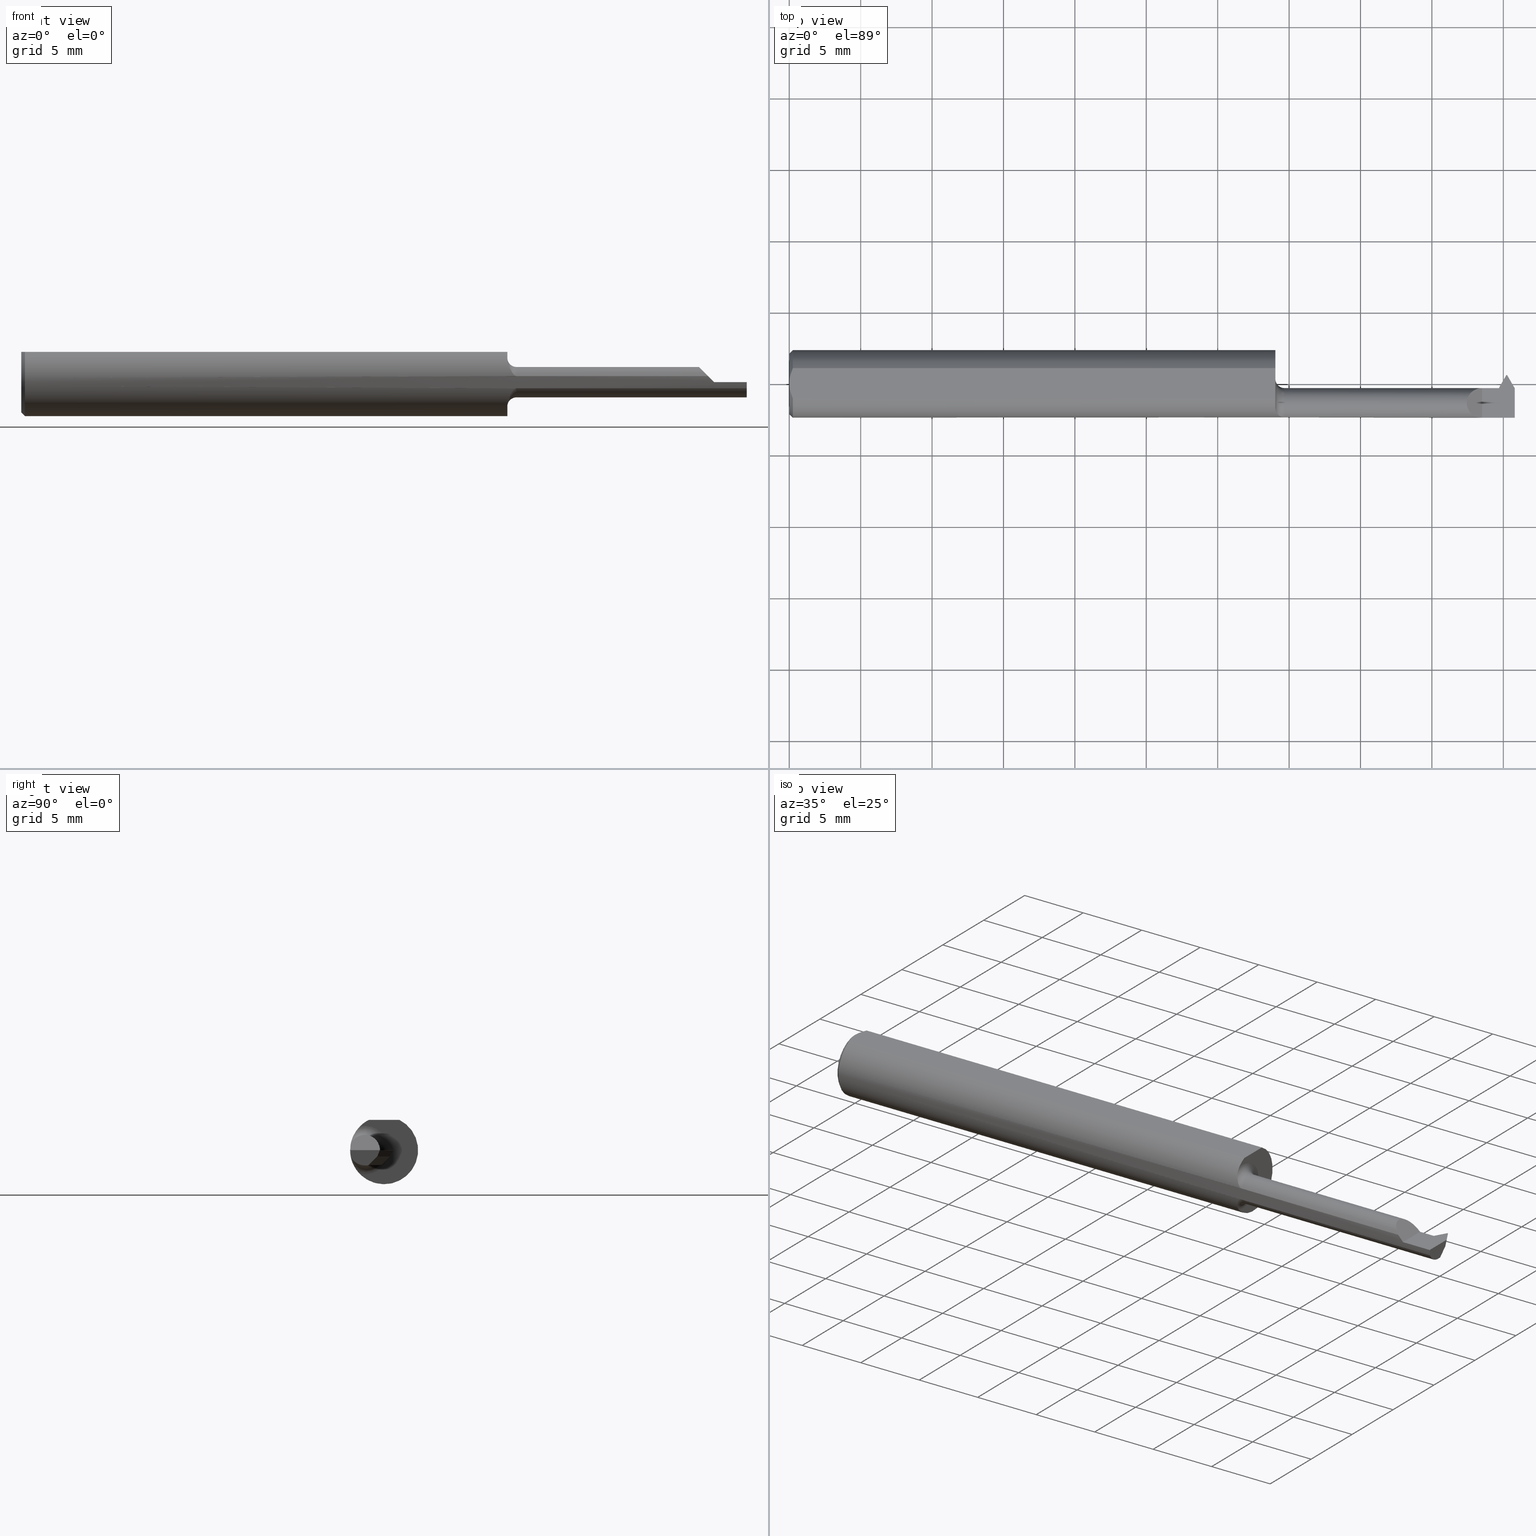
[diagram: canonical four-view strip — front | top / right | iso, engineering-drawing reading convention]
A machine part, canonical four-view strip (front | top / right | iso — engineering-drawing reading convention). The complete STEP part file that produces these views, byte-faithful:
ISO-10303-21;
HEADER;
FILE_DESCRIPTION (( 'STEP AP203' ),
    '1' );
FILE_NAME ('230160-TT120600.STEP',
    '2025-04-24T23:14:33',
    ( '' ),
    ( '' ),
    'SwSTEP 2.0',
    'SolidWorks 2024',
    '' );
FILE_SCHEMA (( 'CONFIG_CONTROL_DESIGN' ));
ENDSEC;

DATA;
#1 = CARTESIAN_POINT ( 'NONE',  ( 2.000000000000000000, -0.2500000000000000555, 0.000000000000000000 ) ) ;
#2 = FACE_OUTER_BOUND ( 'NONE', #324, .T. ) ;
#3 = EDGE_CURVE ( 'NONE', #711, #316, #769, .T. ) ;
#4 = ORIENTED_EDGE ( 'NONE', *, *, #359, .T. ) ;
#5 = LINE ( 'NONE', #438, #168 ) ;
#6 = FACE_OUTER_BOUND ( 'NONE', #44, .T. ) ;
#7 = DIRECTION ( 'NONE',  ( -0.1095011742102285912, 0.1896615972205650813, 0.9757243316563983804 ) ) ;
#8 = AXIS2_PLACEMENT_3D ( 'NONE', #743, #70, #458 ) ;
#9 =( LENGTH_UNIT ( ) NAMED_UNIT ( * ) SI_UNIT ( $, .METRE. ) );
#10 = CC_DESIGN_APPROVAL ( #230, ( #372 ) ) ;
#11 = DIRECTION ( 'NONE',  ( 0.000000000000000000, -0.7071067811865461294, -0.7071067811865489050 ) ) ;
#12 = DIRECTION ( 'NONE',  ( -1.000000000000000000, -0.000000000000000000, -0.000000000000000000 ) ) ;
#13 = VERTEX_POINT ( 'NONE', #334 ) ;
#14 = COORDINATED_UNIVERSAL_TIME_OFFSET ( 8, 0, .BEHIND. ) ;
#15 = APPROVAL ( #40, 'UNSPECIFIED' ) ;
#16 = DIRECTION ( 'NONE',  ( -0.000000000000000000, 0.000000000000000000, 1.000000000000000000 ) ) ;
#17 = CARTESIAN_POINT ( 'NONE',  ( 2.999519565323725069E-32, -0.09359999999999998876, 2.449293598294709866E-16 ) ) ;
#18 = ADVANCED_FACE ( 'NONE', ( #568 ), #393, .T. ) ;
#19 = CARTESIAN_POINT ( 'NONE',  ( 1.893146287756234392, -0.09207014925373124825, 0.01685371224376561172 ) ) ;
#20 = DIRECTION ( 'NONE',  ( 0.4999999999999923395, 0.8660254037844431485, 0.000000000000000000 ) ) ;
#21 = EDGE_CURVE ( 'NONE', #543, #121, #191, .T. ) ;
#22 = LINE ( 'NONE', #330, #309 ) ;
#23 = EDGE_LOOP ( 'NONE', ( #132, #486, #800, #478, #299, #454, #364, #421 ) ) ;
#24 = AXIS2_PLACEMENT_3D ( 'NONE', #645, #278, #95 ) ;
#25 = DIRECTION ( 'NONE',  ( -2.788895906680674731E-17, 1.000000000000000000, 0.000000000000000000 ) ) ;
#26 = DIRECTION ( 'NONE',  ( -0.7745966692414890664, 0.4472135954999538199, -0.4472135954999521545 ) ) ;
#27 = ORIENTED_EDGE ( 'NONE', *, *, #733, .T. ) ;
#28 = CARTESIAN_POINT ( 'NONE',  ( 1.978951940257920095, 0.01787431140439804667, -0.01699999999999998387 ) ) ;
#29 = EDGE_CURVE ( 'NONE', #225, #13, #554, .T. ) ;
#30 = CARTESIAN_POINT ( 'NONE',  ( 1.961724271080942383, -0.05760416344048482906, -0.04200000000000003730 ) ) ;
#31 = ORIENTED_EDGE ( 'NONE', *, *, #570, .T. ) ;
#32 = SECURITY_CLASSIFICATION_LEVEL ( 'unclassified' ) ;
#33 = CARTESIAN_POINT ( 'NONE',  ( 0.000000000000000000, 0.000000000000000000, 0.000000000000000000 ) ) ;
#34 = EDGE_LOOP ( 'NONE', ( #51, #752, #296, #677 ) ) ;
#35 = DIRECTION ( 'NONE',  ( 1.000000000000000000, 0.000000000000000000, 0.000000000000000000 ) ) ;
#36 = CIRCLE ( 'NONE', #114, 0.06699999999999999012 ) ;
#37 = CARTESIAN_POINT ( 'NONE',  ( 1.350331455114174739, -0.08838398833671951005, -0.03113919291468855710 ) ) ;
#38 = CC_DESIGN_APPROVAL ( #564, ( #757 ) ) ;
#39 = VERTEX_POINT ( 'NONE', #319 ) ;
#40 = APPROVAL_STATUS ( 'not_yet_approved' ) ;
#41 = FACE_OUTER_BOUND ( 'NONE', #789, .T. ) ;
#42 = APPLICATION_CONTEXT ( 'configuration controlled 3d designs of mechanical parts and assemblies' ) ;
#43 = CARTESIAN_POINT ( 'NONE',  ( 2.000000000000000000, -0.01858199746962910237, -0.01699999999999975489 ) ) ;
#44 = EDGE_LOOP ( 'NONE', ( #229, #111 ) ) ;
#45 = CARTESIAN_POINT ( 'NONE',  ( 1.979000000000000092, 0.02439999999999998420, 0.000000000000000000 ) ) ;
#46 = DIRECTION ( 'NONE',  ( 0.000000000000000000, -1.000000000000000000, 0.000000000000000000 ) ) ;
#47 = EDGE_CURVE ( 'NONE', #607, #759, #72, .T. ) ;
#48 = ORIENTED_EDGE ( 'NONE', *, *, #138, .F. ) ;
#49 = CARTESIAN_POINT ( 'NONE',  ( 1.944157112200977977, -0.01465827810819487174, -0.01573347692346837093 ) ) ;
#50 = CIRCLE ( 'NONE', #417, 0.08360000000000017417 ) ;
#51 = ORIENTED_EDGE ( 'NONE', *, *, #275, .F. ) ;
#52 = DIRECTION ( 'NONE',  ( -0.4999999999999937828, -0.8660254037844422603, 0.000000000000000000 ) ) ;
#53 = EDGE_CURVE ( 'NONE', #331, #543, #387, .T. ) ;
#54 = ORIENTED_EDGE ( 'NONE', *, *, #430, .F. ) ;
#55 = EDGE_CURVE ( 'NONE', #57, #711, #511, .T. ) ;
#56 = CARTESIAN_POINT ( 'NONE',  ( 1.958233473925546475, -0.01559817617613182966, -0.01788466902292840111 ) ) ;
#57 = VERTEX_POINT ( 'NONE', #577 ) ;
#58 = LINE ( 'NONE', #174, #203 ) ;
#59 = AXIS2_PLACEMENT_3D ( 'NONE', #445, #574, #758 ) ;
#60 = VERTEX_POINT ( 'NONE', #684 ) ;
#61 = VECTOR ( 'NONE', #737, 39.37007874015748143 ) ;
#62 = LOCAL_TIME ( 16, 14, 33.00000000000000000, #280 ) ;
#63 = LINE ( 'NONE', #794, #655 ) ;
#64 = VERTEX_POINT ( 'NONE', #628 ) ;
#65 = DIRECTION ( 'NONE',  ( -0.09759940488031869366, 0.6141129260146374058, 0.7831600540558412149 ) ) ;
#66 = DIRECTION ( 'NONE',  ( 0.000000000000000000, -0.7071067811865437980, -0.7071067811865512365 ) ) ;
#67 = LINE ( 'NONE', #572, #653 ) ;
#68 = APPROVAL_ROLE ( '' ) ;
#69 = LINE ( 'NONE', #750, #204 ) ;
#70 = DIRECTION ( 'NONE',  ( 1.000000000000000000, 2.788895906680674731E-17, 0.000000000000000000 ) ) ;
#71 = EDGE_LOOP ( 'NONE', ( #612, #484, #735, #747 ) ) ;
#72 = CIRCLE ( 'NONE', #59, 0.09360000000000001652 ) ;
#73 = AXIS2_PLACEMENT_3D ( 'NONE', #152, #407, #159 ) ;
#74 = DIRECTION ( 'NONE',  ( 1.000000000000000000, 0.000000000000000000, -0.000000000000000000 ) ) ;
#75 = DIRECTION ( 'NONE',  ( -1.000000000000000000, -0.000000000000000000, -0.000000000000000000 ) ) ;
#76 = CARTESIAN_POINT ( 'NONE',  ( 1.363637246768939493, -0.09207014925426142138, 0.01685371224087028538 ) ) ;
#77 = ADVANCED_FACE ( 'NONE', ( #322 ), #262, .T. ) ;
#78 = ORIENTED_EDGE ( 'NONE', *, *, #433, .T. ) ;
#79 = PRODUCT ( '230160-TT120600', '230160-TT120600', '', ( #501 ) ) ;
#80 = EDGE_CURVE ( 'NONE', #13, #416, #277, .T. ) ;
#81 = CARTESIAN_POINT ( 'NONE',  ( 1.958123224213872859, -0.01490446525534110285, -0.01699999999999975489 ) ) ;
#82 = CARTESIAN_POINT ( 'NONE',  ( 1.360061339936166513, -0.09170362580915404627, 0.01875949767692893649 ) ) ;
#83 = ORIENTED_EDGE ( 'NONE', *, *, #112, .F. ) ;
#84 = CARTESIAN_POINT ( 'NONE',  ( 0.004072204388638599876, -0.02891446873729323561, 0.08359999999999992437 ) ) ;
#85 = DIRECTION ( 'NONE',  ( -1.000000000000000000, -0.000000000000000000, -0.000000000000000000 ) ) ;
#86 = ORIENTED_EDGE ( 'NONE', *, *, #103, .T. ) ;
#87 = CALENDAR_DATE ( 2025, 24, 4 ) ;
#88 = AXIS2_PLACEMENT_3D ( 'NONE', #401, #770, #98 ) ;
#89 = EDGE_CURVE ( 'NONE', #450, #331, #67, .T. ) ;
#90 = VERTEX_POINT ( 'NONE', #200 ) ;
#91 = CARTESIAN_POINT ( 'NONE',  ( 1.976999999999999869, 0.02439999999999998420, 0.000000000000000000 ) ) ;
#92 = CARTESIAN_POINT ( 'NONE',  ( 1.958123224213872859, -0.01490446525534110285, -0.01699999999999975489 ) ) ;
#93 = ORIENTED_EDGE ( 'NONE', *, *, #730, .T. ) ;
#94 = PERSON_AND_ORGANIZATION ( #749, #453 ) ;
#95 = DIRECTION ( 'NONE',  ( 0.000000000000000000, -5.284824987743351801E-15, -1.000000000000000000 ) ) ;
#96 = FACE_OUTER_BOUND ( 'NONE', #595, .T. ) ;
#97 = VERTEX_POINT ( 'NONE', #145 ) ;
#98 = DIRECTION ( 'NONE',  ( 1.000000000000000000, 0.000000000000000000, -0.000000000000000000 ) ) ;
#99 = AXIS2_PLACEMENT_3D ( 'NONE', #594, #283, #473 ) ;
#100 = LINE ( 'NONE', #773, #589 ) ;
#101 = CC_DESIGN_APPROVAL ( #15, ( #215 ) ) ;
#102 = ORIENTED_EDGE ( 'NONE', *, *, #260, .T. ) ;
#103 = EDGE_CURVE ( 'NONE', #616, #57, #22, .T. ) ;
#104 = CARTESIAN_POINT ( 'NONE',  ( 1.979000000000000092, 0.02439999999999998420, 0.000000000000000000 ) ) ;
#105 = EDGE_CURVE ( 'NONE', #64, #435, #753, .T. ) ;
#106 = DIRECTION ( 'NONE',  ( 0.000000000000000000, 0.000000000000000000, -1.000000000000000000 ) ) ;
#107 = ORIENTED_EDGE ( 'NONE', *, *, #624, .T. ) ;
#108 = CARTESIAN_POINT ( 'NONE',  ( 1.910000000000000142, -0.2500000000000000555, 1.102182119232617911E-17 ) ) ;
#109 = LINE ( 'NONE', #799, #178 ) ;
#110 = CC_DESIGN_DATE_AND_TIME_ASSIGNMENT ( #775, #535, ( #757 ) ) ;
#111 = ORIENTED_EDGE ( 'NONE', *, *, #561, .F. ) ;
#112 = EDGE_CURVE ( 'NONE', #701, #39, #209, .T. ) ;
#113 = CARTESIAN_POINT ( 'NONE',  ( 1.958123224213872859, -0.01543225915984460482, -0.01752779390450326033 ) ) ;
#114 = AXIS2_PLACEMENT_3D ( 'NONE', #597, #582, #46 ) ;
#115 = ORIENTED_EDGE ( 'NONE', *, *, #489, .T. ) ;
#116 = ADVANCED_FACE ( 'NONE', ( #96 ), #287, .T. ) ;
#117 = DIRECTION ( 'NONE',  ( 0.7071067811865486830, 0.000000000000000000, -0.7071067811865462405 ) ) ;
#118 = CARTESIAN_POINT ( 'NONE',  ( 1.963132134805907869, -1.941022339785583917, 0.3110804613732584545 ) ) ;
#119 = VERTEX_POINT ( 'NONE', #779 ) ;
#120 = CARTESIAN_POINT ( 'NONE',  ( 1.945131938701440522, -0.01263206735890140542, -0.01071842933564133397 ) ) ;
#121 = VERTEX_POINT ( 'NONE', #43 ) ;
#122 = DIRECTION ( 'NONE',  ( 0.000000000000000000, -0.9335804264972041855, 0.3583679495452941621 ) ) ;
#123 = ORIENTED_EDGE ( 'NONE', *, *, #377, .F. ) ;
#124 = AXIS2_PLACEMENT_3D ( 'NONE', #660, #338, #156 ) ;
#125 = PLANE ( 'NONE',  #188 ) ;
#126 = EDGE_CURVE ( 'NONE', #466, #792, #709, .T. ) ;
#127 = ORIENTED_EDGE ( 'NONE', *, *, #126, .F. ) ;
#128 = CARTESIAN_POINT ( 'NONE',  ( 1.339999999999999858, 0.000000000000000000, 0.000000000000000000 ) ) ;
#129 = APPLICATION_CONTEXT ( 'configuration controlled 3d designs of mechanical parts and assemblies' ) ;
#130 = DIRECTION ( 'NONE',  ( 2.679345334667651810E-15, -0.7071067811865437980, -0.7071067811865512365 ) ) ;
#131 = CARTESIAN_POINT ( 'NONE',  ( 1.339999999999999858, -0.05360000000000006426, 0.000000000000000000 ) ) ;
#132 = ORIENTED_EDGE ( 'NONE', *, *, #368, .F. ) ;
#133 = PERSON_AND_ORGANIZATION ( #749, #453 ) ;
#134 = DIRECTION ( 'NONE',  ( 0.8501140779110486490, -0.4908135917238243828, 0.1908089953765452207 ) ) ;
#135 = EDGE_CURVE ( 'NONE', #225, #395, #100, .T. ) ;
#136 = CARTESIAN_POINT ( 'NONE',  ( 1.893146287756234392, -0.09207014925373124825, 0.01685371224376561172 ) ) ;
#137 = VERTEX_POINT ( 'NONE', #92 ) ;
#138 = EDGE_CURVE ( 'NONE', #585, #313, #425, .T. ) ;
#139 = VECTOR ( 'NONE', #7, 39.37007874015748854 ) ;
#140 = CARTESIAN_POINT ( 'NONE',  ( 1.960892469047971876, -0.03472121277308289761, -0.03875606750253003663 ) ) ;
#141 = LINE ( 'NONE', #81, #336 ) ;
#142 = CARTESIAN_POINT ( 'NONE',  ( 1.340000000000000080, -0.06665037313432836674, 0.06571672360255645384 ) ) ;
#143 = ORIENTED_EDGE ( 'NONE', *, *, #29, .F. ) ;
#144 = FACE_OUTER_BOUND ( 'NONE', #253, .T. ) ;
#145 = CARTESIAN_POINT ( 'NONE',  ( 2.000000000000000000, -0.04358199746962928417, -0.04200000000000003730 ) ) ;
#146 = ADVANCED_FACE ( 'NONE', ( #654 ), #783, .F. ) ;
#147 = CARTESIAN_POINT ( 'NONE',  ( 1.959772643405777393, -0.02989775884994197441, -0.03485017143795818978 ) ) ;
#148 = DIRECTION ( 'NONE',  ( 0.000000000000000000, -1.000000000000000000, 0.000000000000000000 ) ) ;
#149 = PERSON_AND_ORGANIZATION ( #749, #453 ) ;
#150 = VECTOR ( 'NONE', #75, 39.37007874015748143 ) ;
#151 = AXIS2_PLACEMENT_3D ( 'NONE', #541, #782, #231 ) ;
#152 = CARTESIAN_POINT ( 'NONE',  ( 1.963132134805907869, -1.941022339785583917, 0.3110804613732584545 ) ) ;
#153 = CARTESIAN_POINT ( 'NONE',  ( 1.910000000000000142, -0.01159999999999993849, 8.082668874372542852E-17 ) ) ;
#154 = ORIENTED_EDGE ( 'NONE', *, *, #521, .F. ) ;
#155 = LINE ( 'NONE', #464, #740 ) ;
#156 = DIRECTION ( 'NONE',  ( 2.788895906680674731E-17, -1.000000000000000000, 0.000000000000000000 ) ) ;
#157 = ORIENTED_EDGE ( 'NONE', *, *, #561, .T. ) ;
#158 = APPROVAL_STATUS ( 'not_yet_approved' ) ;
#159 = DIRECTION ( 'NONE',  ( 0.1075127992097298923, 0.000000000000000000, -0.9942037004588587523 ) ) ;
#160 = EDGE_CURVE ( 'NONE', #649, #137, #290, .T. ) ;
#161 = DIRECTION ( 'NONE',  ( -0.02101556823979282632, 0.9997791485580995730, 0.000000000000000000 ) ) ;
#162 = ORIENTED_EDGE ( 'NONE', *, *, #260, .F. ) ;
#163 = ADVANCED_FACE ( 'NONE', ( #356 ), #465, .F. ) ;
#164 = DATE_AND_TIME ( #87, #567 ) ;
#165 = AXIS2_PLACEMENT_3D ( 'NONE', #635, #85, #763 ) ;
#166 = CARTESIAN_POINT ( 'NONE',  ( 1.959119529091848610, -0.03288110353594955737, -0.03670228894909062511 ) ) ;
#167 = VECTOR ( 'NONE', #130, 39.37007874015748143 ) ;
#168 = VECTOR ( 'NONE', #65, 39.37007874015748143 ) ;
#169 = CARTESIAN_POINT ( 'NONE',  ( 1.956215390309173907, -0.01159999999999993849, 0.000000000000000000 ) ) ;
#170 = ORIENTED_EDGE ( 'NONE', *, *, #340, .T. ) ;
#171 = DIRECTION ( 'NONE',  ( -2.788895906680674731E-17, 1.000000000000000000, 0.000000000000000000 ) ) ;
#172 = ORIENTED_EDGE ( 'NONE', *, *, #768, .F. ) ;
#173 = LINE ( 'NONE', #426, #389 ) ;
#174 = CARTESIAN_POINT ( 'NONE',  ( 2.152215390309172971, -0.05359999999999999487, -0.04200000000000003730 ) ) ;
#175 = ORIENTED_EDGE ( 'NONE', *, *, #47, .T. ) ;
#176 = AXIS2_PLACEMENT_3D ( 'NONE', #696, #26, #461 ) ;
#177 = CARTESIAN_POINT ( 'NONE',  ( 1.976999999999999869, 0.02439999999999998420, 0.000000000000000000 ) ) ;
#178 = VECTOR ( 'NONE', #52, 39.37007874015748143 ) ;
#179 = ORIENTED_EDGE ( 'NONE', *, *, #126, .T. ) ;
#180 = DIRECTION ( 'NONE',  ( 0.000000000000000000, 1.000000000000000000, 0.000000000000000000 ) ) ;
#181 = VERTEX_POINT ( 'NONE', #153 ) ;
#182 = CARTESIAN_POINT ( 'NONE',  ( 1.947215390309172900, -0.01159999999999992634, 0.000000000000000000 ) ) ;
#183 = ORIENTED_EDGE ( 'NONE', *, *, #235, .T. ) ;
#184 = ADVANCED_FACE ( 'NONE', ( #341 ), #642, .T. ) ;
#185 = LENGTH_MEASURE_WITH_UNIT ( LENGTH_MEASURE( 0.02539999999999999897 ), #9 );
#186 = CARTESIAN_POINT ( 'NONE',  ( 1.977048059742079644, -0.007125688595601753494, -0.04200000000000003730 ) ) ;
#187 = ORIENTED_EDGE ( 'NONE', *, *, #662, .F. ) ;
#188 = AXIS2_PLACEMENT_3D ( 'NONE', #756, #575, #634 ) ;
#189 = DIRECTION ( 'NONE',  ( -1.000000000000000000, 0.000000000000000000, 1.224646799147355426E-16 ) ) ;
#190 = FACE_OUTER_BOUND ( 'NONE', #335, .T. ) ;
#191 = LINE ( 'NONE', #693, #613 ) ;
#192 = ORIENTED_EDGE ( 'NONE', *, *, #29, .T. ) ;
#193 = EDGE_CURVE ( 'NONE', #270, #39, #477, .T. ) ;
#194 = FACE_OUTER_BOUND ( 'NONE', #404, .T. ) ;
#195 = ADVANCED_FACE ( 'NONE', ( #766 ), #657, .F. ) ;
#196 = CARTESIAN_POINT ( 'NONE',  ( 1.347959848388074811, -0.08665969772256693071, 0.03571742193933166026 ) ) ;
#197 = ORIENTED_EDGE ( 'NONE', *, *, #433, .F. ) ;
#198 = DATE_AND_TIME ( #205, #798 ) ;
#199 = CARTESIAN_POINT ( 'NONE',  ( 1.961640102722212120, -0.05360000000000004344, -0.04200000000000007200 ) ) ;
#200 = CARTESIAN_POINT ( 'NONE',  ( 2.000000000000000000, -0.05359999999999999487, -0.04200000000000003730 ) ) ;
#201 = VECTOR ( 'NONE', #12, 39.37007874015748143 ) ;
#202 = ORIENTED_EDGE ( 'NONE', *, *, #105, .F. ) ;
#203 = VECTOR ( 'NONE', #244, 39.37007874015748143 ) ;
#204 = VECTOR ( 'NONE', #573, 39.37007874015748143 ) ;
#205 = CALENDAR_DATE ( 2025, 24, 4 ) ;
#206 = PLANE ( 'NONE',  #691 ) ;
#207 = CARTESIAN_POINT ( 'NONE',  ( 1.910000000000000142, -0.09360000000000005815, 1.102182119232617911E-17 ) ) ;
#208 = DIRECTION ( 'NONE',  ( -1.000000000000000000, -0.000000000000000000, -0.000000000000000000 ) ) ;
#209 = LINE ( 'NONE', #563, #139 ) ;
#210 = SHAPE_DEFINITION_REPRESENTATION ( #736, #381 ) ;
#211 = CARTESIAN_POINT ( 'NONE',  ( 1.958149881984653229, -0.01526487251527728663, -0.01717645647600302486 ) ) ;
#212 = DIRECTION ( 'NONE',  ( 0.000000000000000000, 0.000000000000000000, -1.000000000000000000 ) ) ;
#213 = ORIENTED_EDGE ( 'NONE', *, *, #285, .F. ) ;
#214 = AXIS2_PLACEMENT_3D ( 'NONE', #131, #700, #148 ) ;
#215 = PRODUCT_DEFINITION_FORMATION_WITH_SPECIFIED_SOURCE ( 'ANY', '', #79, .NOT_KNOWN. ) ;
#216 = CARTESIAN_POINT ( 'NONE',  ( 1.958065731429537548, -0.01495149155541240261, -0.01645920567192139458 ) ) ;
#217 = DIRECTION ( 'NONE',  ( 0.1908089953765452484, 0.000000000000000000, 0.9816271834476639757 ) ) ;
#218 = ORIENTED_EDGE ( 'NONE', *, *, #53, .T. ) ;
#219 = APPROVAL_DATE_TIME ( #164, #564 ) ;
#220 = EDGE_CURVE ( 'NONE', #13, #313, #36, .T. ) ;
#221 = FACE_OUTER_BOUND ( 'NONE', #424, .T. ) ;
#222 = MANIFOLD_SOLID_BREP ( 'Cut-Sweep1', #361 ) ;
#223 = CARTESIAN_POINT ( 'NONE',  ( 1.339999999999999858, -0.04209513035969859179, 0.08359999999999992437 ) ) ;
#224 = EDGE_CURVE ( 'NONE', #236, #673, #234, .T. ) ;
#225 = VERTEX_POINT ( 'NONE', #223 ) ;
#226 = B_SPLINE_CURVE_WITH_KNOTS ( 'NONE', 3,
 ( #397, #84, #318, #444 ),
 .UNSPECIFIED., .F., .F.,
 ( 4, 4 ),
 ( 0.0006429768761302141322, 0.001744210492668867019 ),
 .UNSPECIFIED. ) ;
#227 = CARTESIAN_POINT ( 'NONE',  ( 1.364999999999999769, -0.09207014925373117886, -0.01685371224376598295 ) ) ;
#228 = CARTESIAN_POINT ( 'NONE',  ( 1.360040276532751058, -0.09170035127622422344, -0.01877567467121205383 ) ) ;
#229 = ORIENTED_EDGE ( 'NONE', *, *, #521, .T. ) ;
#230 = APPROVAL ( #625, 'UNSPECIFIED' ) ;
#231 = DIRECTION ( 'NONE',  ( 0.4999999999999949485, -0.8660254037844417052, 0.000000000000000000 ) ) ;
#232 = AXIS2_PLACEMENT_3D ( 'NONE', #525, #538, #106 ) ;
#233 = CC_DESIGN_SECURITY_CLASSIFICATION ( #757, ( #215 ) ) ;
#234 = LINE ( 'NONE', #777, #349 ) ;
#235 = EDGE_CURVE ( 'NONE', #64, #119, #355, .T. ) ;
#236 = VERTEX_POINT ( 'NONE', #723 ) ;
#237 = CARTESIAN_POINT ( 'NONE',  ( 2.000000000000000000, -0.09207014925373097070, -0.01685371224376563601 ) ) ;
#238 = CARTESIAN_POINT ( 'NONE',  ( 1.958197195546113933, -0.01554231335609888680, -0.01776597020650210954 ) ) ;
#239 = ORIENTED_EDGE ( 'NONE', *, *, #333, .T. ) ;
#240 = FACE_OUTER_BOUND ( 'NONE', #685, .T. ) ;
#241 =( BOUNDED_CURVE ( )  B_SPLINE_CURVE ( 3, ( #49, #120, #556, #495 ),
 .UNSPECIFIED., .F., .T. ) 
 B_SPLINE_CURVE_WITH_KNOTS ( ( 4, 4 ),
 ( 1.186823891356144189, 1.570796326794896780 ),
 .UNSPECIFIED. ) 
 CURVE ( )  GEOMETRIC_REPRESENTATION_ITEM ( )  RATIONAL_B_SPLINE_CURVE ( ( 1.000000000000000000, 0.9877514556317759098, 0.9877514556317759098, 1.000000000000000000 ) ) 
 REPRESENTATION_ITEM ( '' )  );
#242 = ORIENTED_EDGE ( 'NONE', *, *, #760, .F. ) ;
#243 = PLANE ( 'NONE',  #314 ) ;
#244 = DIRECTION ( 'NONE',  ( -1.000000000000000000, -0.000000000000000000, -0.000000000000000000 ) ) ;
#245 = VECTOR ( 'NONE', #180, 39.37007874015748143 ) ;
#246 = ORIENTED_EDGE ( 'NONE', *, *, #359, .F. ) ;
#247 = ADVANCED_FACE ( 'NONE', ( #2 ), #611, .F. ) ;
#248 = CARTESIAN_POINT ( 'NONE',  ( 1.339999999999999858, 0.02439999999999994951, 8.082668874372542852E-17 ) ) ;
#249 = ORIENTED_EDGE ( 'NONE', *, *, #235, .F. ) ;
#250 = EDGE_CURVE ( 'NONE', #90, #466, #58, .T. ) ;
#251 = CARTESIAN_POINT ( 'NONE',  ( 0.000000000000000000, 0.000000000000000000, 0.000000000000000000 ) ) ;
#252 = CARTESIAN_POINT ( 'NONE',  ( 0.009999999999999877043, 0.04209513035969860567, 0.08359999999999989662 ) ) ;
#253 = EDGE_LOOP ( 'NONE', ( #83, #27, #367, #474 ) ) ;
#254 = CC_DESIGN_PERSON_AND_ORGANIZATION_ASSIGNMENT ( #519, #715, ( #215 ) ) ;
#255 = DIRECTION ( 'NONE',  ( 0.000000000000000000, 0.000000000000000000, -1.000000000000000000 ) ) ;
#256 = VECTOR ( 'NONE', #586, 39.37007874015748143 ) ;
#257 = ADVANCED_FACE ( 'NONE', ( #669 ), #601, .F. ) ;
#258 = AXIS2_PLACEMENT_3D ( 'NONE', #251, #694, #263 ) ;
#259 = CARTESIAN_POINT ( 'NONE',  ( 0.009999999999999877043, 0.000000000000000000, -0.09360000000000001652 ) ) ;
#260 = EDGE_CURVE ( 'NONE', #60, #270, #241, .T. ) ;
#261 = PLANE ( 'NONE',  #373 ) ;
#262 = PLANE ( 'NONE',  #176 ) ;
#263 = DIRECTION ( 'NONE',  ( 1.000000000000000000, 0.000000000000000000, 0.000000000000000000 ) ) ;
#264 = LINE ( 'NONE', #566, #667 ) ;
#265 = CARTESIAN_POINT ( 'NONE',  ( 1.344091173271814377, -0.08239225417103612781, 0.04468952776629343815 ) ) ;
#266 = ORIENTED_EDGE ( 'NONE', *, *, #646, .T. ) ;
#267 =( BOUNDED_CURVE ( )  B_SPLINE_CURVE ( 3, ( #325, #378, #140, #741 ),
 .UNSPECIFIED., .F., .T. ) 
 B_SPLINE_CURVE_WITH_KNOTS ( ( 4, 4 ),
 ( 3.333578871309169411, 4.014249778417084968 ),
 .UNSPECIFIED. ) 
 CURVE ( )  GEOMETRIC_REPRESENTATION_ITEM ( )  RATIONAL_B_SPLINE_CURVE ( ( 1.000000000000000000, 0.9617618287043507852, 0.9617618287043507852, 1.000000000000000000 ) ) 
 REPRESENTATION_ITEM ( '' )  );
#268 = CARTESIAN_POINT ( 'NONE',  ( -3.937007874047004035E-05, 0.01787431140439802932, -0.01700000000000000122 ) ) ;
#269 = CARTESIAN_POINT ( 'NONE',  ( 1.978951940257920095, 0.01787431140439437946, -0.01700000000000365108 ) ) ;
#270 = VERTEX_POINT ( 'NONE', #182 ) ;
#271 = AXIS2_PLACEMENT_3D ( 'NONE', #533, #584, #217 ) ;
#272 = DIRECTION ( 'NONE',  ( 1.000000000000000000, 0.000000000000000000, 0.000000000000000000 ) ) ;
#273 = CARTESIAN_POINT ( 'NONE',  ( 1.350323772047401061, -0.08838176252376904463, 0.03114868400121339337 ) ) ;
#274 = ORIENTED_EDGE ( 'NONE', *, *, #285, .T. ) ;
#275 = EDGE_CURVE ( 'NONE', #236, #543, #427, .T. ) ;
#276 = CALENDAR_DATE ( 2025, 24, 4 ) ;
#277 = B_SPLINE_CURVE_WITH_KNOTS ( 'NONE', 3,
 ( #142, #507, #746, #631, #265, #196, #273, #449, #688, #327, #82, #522, #76, #515 ),
 .UNSPECIFIED., .F., .F.,
 ( 4, 2, 2, 2, 2, 2, 4 ),
 ( 4.596658918362352711E-05, 0.0004513928604954075175, 0.0008568191318071911216, 0.001262245403118974129, 0.001464958538774865579, 0.001566315106602804257, 0.001667671674430742934 ),
 .UNSPECIFIED. ) ;
#278 = DIRECTION ( 'NONE',  ( -1.000000000000000000, -0.000000000000000000, -0.000000000000000000 ) ) ;
#279 = CARTESIAN_POINT ( 'NONE',  ( 1.363627452150747432, -0.09207014925373115111, -0.01685371224376602112 ) ) ;
#280 = COORDINATED_UNIVERSAL_TIME_OFFSET ( 8, 0, .BEHIND. ) ;
#281 = CC_DESIGN_DATE_AND_TIME_ASSIGNMENT ( #475, #348, ( #372 ) ) ;
#282 = DIRECTION ( 'NONE',  ( -0.7071067811865507924, 0.000000000000000000, 0.7071067811865441310 ) ) ;
#283 = DIRECTION ( 'NONE',  ( 0.7745966692414797405, 0.4472135954999620355, -0.4472135954999603147 ) ) ;
#284 = ORIENTED_EDGE ( 'NONE', *, *, #366, .T. ) ;
#285 = EDGE_CURVE ( 'NONE', #450, #792, #109, .T. ) ;
#286 = COORDINATED_UNIVERSAL_TIME_OFFSET ( 8, 0, .BEHIND. ) ;
#287 = CONICAL_SURFACE ( 'NONE', #576, 0.08360000000000017417, 0.7853981633974466137 ) ;
#288 = DIRECTION ( 'NONE',  ( 1.000000000000000000, 0.000000000000000000, 0.000000000000000000 ) ) ;
#289 = EDGE_CURVE ( 'NONE', #121, #616, #365, .T. ) ;
#290 = LINE ( 'NONE', #705, #614 ) ;
#291 = ORIENTED_EDGE ( 'NONE', *, *, #55, .T. ) ;
#292 = PERSON_AND_ORGANIZATION ( #749, #453 ) ;
#293 = CARTESIAN_POINT ( 'NONE',  ( 0.009999999999999877043, -0.04209513035969860567, 0.08359999999999989662 ) ) ;
#294 = CARTESIAN_POINT ( 'NONE',  ( 1.354665360541867258, -0.09032542640524104938, -0.02464512177151425773 ) ) ;
#295 = CC_DESIGN_PERSON_AND_ORGANIZATION_ASSIGNMENT ( #690, #558, ( #372 ) ) ;
#296 = ORIENTED_EDGE ( 'NONE', *, *, #368, .T. ) ;
#297 = DIRECTION ( 'NONE',  ( 0.000000000000000000, 0.000000000000000000, -1.000000000000000000 ) ) ;
#298 = CARTESIAN_POINT ( 'NONE',  ( 1.342599756579036407, -0.07984340602545496324, -0.04912629365152901967 ) ) ;
#299 = ORIENTED_EDGE ( 'NONE', *, *, #710, .F. ) ;
#300 = CARTESIAN_POINT ( 'NONE',  ( 1.957981087998196923, -0.01465827810819258538, -0.01573347692346844379 ) ) ;
#301 = AXIS2_PLACEMENT_3D ( 'NONE', #354, #712, #282 ) ;
#302 = CARTESIAN_POINT ( 'NONE',  ( 2.000000000000000000, 0.000000000000000000, -0.04200000000000003730 ) ) ;
#303 = ORIENTED_EDGE ( 'NONE', *, *, #710, .T. ) ;
#304 = CARTESIAN_POINT ( 'NONE',  ( 0.000000000000000000, 0.000000000000000000, 0.000000000000000000 ) ) ;
#305 = ORIENTED_EDGE ( 'NONE', *, *, #730, .F. ) ;
#306 =( BOUNDED_CURVE ( )  B_SPLINE_CURVE ( 3, ( #56, #238, #307, #113 ),
 .UNSPECIFIED., .F., .T. ) 
 B_SPLINE_CURVE_WITH_KNOTS ( ( 4, 4 ),
 ( 3.487116828093232535, 3.496487303261012869 ),
 .UNSPECIFIED. ) 
 CURVE ( )  GEOMETRIC_REPRESENTATION_ITEM ( )  RATIONAL_B_SPLINE_CURVE ( ( 1.000000000000000000, 0.9999926828629792652, 0.9999926828629792652, 1.000000000000000000 ) ) 
 REPRESENTATION_ITEM ( '' )  );
#307 = CARTESIAN_POINT ( 'NONE',  ( 1.958160445373316572, -0.01548700727932099397, -0.01764701096325264548 ) ) ;
#308 = ORIENTED_EDGE ( 'NONE', *, *, #135, .T. ) ;
#309 = VECTOR ( 'NONE', #398, 39.37007874015748143 ) ;
#310 = AXIS2_PLACEMENT_3D ( 'NONE', #630, #329, #326 ) ;
#311 = CARTESIAN_POINT ( 'NONE',  ( -3.937007874047004035E-05, 0.02439999999999998420, 3.796405077356781606E-17 ) ) ;
#312 = EDGE_CURVE ( 'NONE', #90, #97, #665, .T. ) ;
#313 = VERTEX_POINT ( 'NONE', #436 ) ;
#314 = AXIS2_PLACEMENT_3D ( 'NONE', #491, #633, #74 ) ;
#315 = CARTESIAN_POINT ( 'NONE',  ( 2.000000000000000000, -0.01040109878389459952, 0.004043537593970810730 ) ) ;
#316 = VERTEX_POINT ( 'NONE', #434 ) ;
#317 = CARTESIAN_POINT ( 'NONE',  ( 1.851690087160739573, -0.01159999999999998532, 0.05830991283926018759 ) ) ;
#318 = CARTESIAN_POINT ( 'NONE',  ( -2.262195879907695790E-16, -0.01462709520273676109, 0.08359999999999992437 ) ) ;
#319 = CARTESIAN_POINT ( 'NONE',  ( 1.956215390309173907, -0.01159999999999993849, 0.000000000000000000 ) ) ;
#320 = PLANE ( 'NONE',  #468 ) ;
#321 = CARTESIAN_POINT ( 'NONE',  ( 1.958123224213872859, -0.01490446525534110285, -0.01699999999999975489 ) ) ;
#322 = FACE_OUTER_BOUND ( 'NONE', #796, .T. ) ;
#323 = CONICAL_SURFACE ( 'NONE', #429, 0.08360000000000017417, 0.7853981633974466137 ) ;
#324 = EDGE_LOOP ( 'NONE', ( #409, #588, #764 ) ) ;
#325 = CARTESIAN_POINT ( 'NONE',  ( 1.961640102722212120, -0.05360000000000004344, -0.04200000000000007200 ) ) ;
#326 = DIRECTION ( 'NONE',  ( 0.000000000000000000, -1.000000000000000000, 0.000000000000000000 ) ) ;
#327 = CARTESIAN_POINT ( 'NONE',  ( 1.359051853270285326, -0.09151898401755900747, 0.01965164102476858049 ) ) ;
#328 =( NAMED_UNIT ( * ) PLANE_ANGLE_UNIT ( ) SI_UNIT ( $, .RADIAN. ) );
#329 = DIRECTION ( 'NONE',  ( -1.000000000000000000, -2.788895906680674731E-17, -0.000000000000000000 ) ) ;
#330 = CARTESIAN_POINT ( 'NONE',  ( 2.000000000000000000, 0.000000000000000000, 0.000000000000000000 ) ) ;
#331 = VERTEX_POINT ( 'NONE', #423 ) ;
#332 = PLANE ( 'NONE',  #678 ) ;
#333 = EDGE_CURVE ( 'NONE', #714, #585, #606, .T. ) ;
#334 = CARTESIAN_POINT ( 'NONE',  ( 1.340000000000000080, -0.06665037313432836674, 0.06571672360255645384 ) ) ;
#335 = EDGE_LOOP ( 'NONE', ( #780, #540, #353, #499 ) ) ;
#336 = VECTOR ( 'NONE', #520, 39.37007874015748143 ) ;
#337 = FACE_OUTER_BOUND ( 'NONE', #512, .T. ) ;
#338 = DIRECTION ( 'NONE',  ( -1.000000000000000000, -2.788895906680674731E-17, -0.000000000000000000 ) ) ;
#339 = CARTESIAN_POINT ( 'NONE',  ( 2.000000000000000000, -0.05360000000000004344, 0.000000000000000000 ) ) ;
#340 = EDGE_CURVE ( 'NONE', #649, #496, #306, .T. ) ;
#341 = FACE_OUTER_BOUND ( 'NONE', #609, .T. ) ;
#342 = EDGE_LOOP ( 'NONE', ( #726, #547, #86, #471, #569, #462 ) ) ;
#343 = ADVANCED_FACE ( 'NONE', ( #240 ), #671, .T. ) ;
#344 = PERSON_AND_ORGANIZATION_ROLE ( 'creator' ) ;
#345 = CARTESIAN_POINT ( 'NONE',  ( 1.958233473925546475, -0.01559817617613182966, -0.01788466902292840111 ) ) ;
#346 = CARTESIAN_POINT ( 'NONE',  ( 1.340550322316036880, -0.07386771902718257399, -0.05772280571319391568 ) ) ;
#347 = ORIENTED_EDGE ( 'NONE', *, *, #312, .F. ) ;
#348 = DATE_TIME_ROLE ( 'creation_date' ) ;
#349 = VECTOR ( 'NONE', #542, 39.37007874015748854 ) ;
#350 = VECTOR ( 'NONE', #117, 39.37007874015748854 ) ;
#351 = LINE ( 'NONE', #104, #603 ) ;
#352 = DIRECTION ( 'NONE',  ( -0.09759940488031869366, 0.6141129260146374058, 0.7831600540558412149 ) ) ;
#353 = ORIENTED_EDGE ( 'NONE', *, *, #500, .F. ) ;
#354 = CARTESIAN_POINT ( 'NONE',  ( 1.910000000000000142, -0.2500000000000000555, 1.102182119232617911E-17 ) ) ;
#355 = B_SPLINE_CURVE_WITH_KNOTS ( 'NONE', 3,
 ( #483, #720, #713, #731, #485, #252 ),
 .UNSPECIFIED., .F., .F.,
 ( 4, 2, 4 ),
 ( 0.001744210492668867019, 0.002295110172257195866, 0.002846009851845524713 ),
 .UNSPECIFIED. ) ;
#356 = FACE_OUTER_BOUND ( 'NONE', #579, .T. ) ;
#357 = ORIENTED_EDGE ( 'NONE', *, *, #760, .T. ) ;
#358 = CARTESIAN_POINT ( 'NONE',  ( 1.658607695154586503, -0.09207014925373123437, -0.01685371224376563948 ) ) ;
#359 = EDGE_CURVE ( 'NONE', #97, #331, #369, .T. ) ;
#360 = ORIENTED_EDGE ( 'NONE', *, *, #220, .T. ) ;
#361 = CLOSED_SHELL ( 'NONE', ( #116, #536, #18, #739, #422, #698, #539, #672, #247, #406, #343, #590, #786, #546, #650, #146, #195, #455, #257, #163, #77, #463, #184 ) ) ;
#362 = VECTOR ( 'NONE', #608, 39.37007874015748854 ) ;
#363 = DIRECTION ( 'NONE',  ( -1.000000000000000000, -0.000000000000000000, -0.000000000000000000 ) ) ;
#364 = ORIENTED_EDGE ( 'NONE', *, *, #103, .F. ) ;
#365 = LINE ( 'NONE', #315, #362 ) ;
#366 = EDGE_CURVE ( 'NONE', #39, #673, #488, .T. ) ;
#367 = ORIENTED_EDGE ( 'NONE', *, *, #681, .T. ) ;
#368 = EDGE_CURVE ( 'NONE', #673, #550, #431, .T. ) ;
#369 = LINE ( 'NONE', #549, #479 ) ;
#370 = EDGE_LOOP ( 'NONE', ( #246, #347, #664, #179, #213, #767 ) ) ;
#371 = PLANE ( 'NONE',  #151 ) ;
#372 = PRODUCT_DEFINITION ( 'UNKNOWN', '', #215, #544 ) ;
#373 = AXIS2_PLACEMENT_3D ( 'NONE', #506, #745, #16 ) ;
#374 = DIRECTION ( 'NONE',  ( 1.000000000000000000, 2.788895906680674731E-17, 0.000000000000000000 ) ) ;
#375 = APPROVAL_PERSON_ORGANIZATION ( #385, #230, #68 ) ;
#376 = ORIENTED_EDGE ( 'NONE', *, *, #674, .F. ) ;
#377 = EDGE_CURVE ( 'NONE', #607, #225, #63, .T. ) ;
#378 = CARTESIAN_POINT ( 'NONE',  ( 1.961435826313443043, -0.04388190474321931878, -0.04200000000000012751 ) ) ;
#379 = DIRECTION ( 'NONE',  ( 0.000000000000000000, 0.000000000000000000, -1.000000000000000000 ) ) ;
#380 = EDGE_LOOP ( 'NONE', ( #157, #107, #242, #721, #376, #239, #54, #266, #661, #399, #162, #680, #523, #170 ) ) ;
#381 = ADVANCED_BREP_SHAPE_REPRESENTATION ( '230160-TT120600', ( #222, #258 ), #578 ) ;
#382 = CARTESIAN_POINT ( 'NONE',  ( 1.958123224213872859, -0.01490446525534110285, -0.01699999999999975489 ) ) ;
#383 = CARTESIAN_POINT ( 'NONE',  ( 1.898710277283380599, -0.09308865393932075349, 0.01128972271661917749 ) ) ;
#384 = ORIENTED_EDGE ( 'NONE', *, *, #624, .F. ) ;
#385 = PERSON_AND_ORGANIZATION ( #749, #453 ) ;
#386 = PLANE ( 'NONE',  #754 ) ;
#387 = LINE ( 'NONE', #269, #529 ) ;
#388 = AXIS2_PLACEMENT_3D ( 'NONE', #339, #35, #472 ) ;
#389 = VECTOR ( 'NONE', #551, 39.37007874015748143 ) ;
#390 = ORIENTED_EDGE ( 'NONE', *, *, #394, .T. ) ;
#391 =( CONVERSION_BASED_UNIT ( 'INCH', #185 ) LENGTH_UNIT ( ) NAMED_UNIT ( #744 ) );
#392 = DIRECTION ( 'NONE',  ( 1.000000000000000000, 2.788895906680674731E-17, 0.000000000000000000 ) ) ;
#393 = CYLINDRICAL_SURFACE ( 'NONE', #214, 0.04200000000000010669 ) ;
#394 = EDGE_CURVE ( 'NONE', #395, #119, #559, .T. ) ;
#395 = VERTEX_POINT ( 'NONE', #621 ) ;
#396 = DIRECTION ( 'NONE',  ( -1.224646799147355426E-16, 0.000000000000000000, -1.000000000000000000 ) ) ;
#397 = CARTESIAN_POINT ( 'NONE',  ( 0.009999999999999877043, -0.04209513035969860567, 0.08359999999999989662 ) ) ;
#398 = DIRECTION ( 'NONE',  ( 0.000000000000000000, -1.000000000000000000, 0.000000000000000000 ) ) ;
#399 = ORIENTED_EDGE ( 'NONE', *, *, #510, .T. ) ;
#400 = APPROVAL_DATE_TIME ( #702, #15 ) ;
#401 = CARTESIAN_POINT ( 'NONE',  ( 2.191425808082400728, 0.09360000000000001652, 0.08359999999999992437 ) ) ;
#402 = CC_DESIGN_PERSON_AND_ORGANIZATION_ASSIGNMENT ( #94, #344, ( #215 ) ) ;
#403 = DIRECTION ( 'NONE',  ( 2.607680746585195940E-15, 0.7071067811865437980, 0.7071067811865512365 ) ) ;
#404 = EDGE_LOOP ( 'NONE', ( #738, #641, #534, #284, #446 ) ) ;
#405 = AXIS2_PLACEMENT_3D ( 'NONE', #311, #122, #498 ) ;
#406 = ADVANCED_FACE ( 'NONE', ( #144 ), #125, .F. ) ;
#407 = DIRECTION ( 'NONE',  ( 0.9939866663323911888, 0.02089380904360662108, 0.1074893292242029841 ) ) ;
#408 = DIRECTION ( 'NONE',  ( 1.000000000000000000, 0.000000000000000000, 0.000000000000000000 ) ) ;
#409 = ORIENTED_EDGE ( 'NONE', *, *, #160, .F. ) ;
#410 = CALENDAR_DATE ( 2025, 24, 4 ) ;
#411 = DIRECTION ( 'NONE',  ( 0.000000000000000000, 0.000000000000000000, 1.000000000000000000 ) ) ;
#412 = CARTESIAN_POINT ( 'NONE',  ( 1.364999999999999769, -0.09207014925373117886, -0.01685371224376598295 ) ) ;
#413 = ORIENTED_EDGE ( 'NONE', *, *, #377, .T. ) ;
#414 = CARTESIAN_POINT ( 'NONE',  ( 1.957981087998196923, -0.01465827810819258538, -0.01573347692346844379 ) ) ;
#415 = CARTESIAN_POINT ( 'NONE',  ( 1.344085356245837692, -0.08239036684830187973, -0.04469806793346454282 ) ) ;
#416 = VERTEX_POINT ( 'NONE', #618 ) ;
#417 = AXIS2_PLACEMENT_3D ( 'NONE', #419, #716, #297 ) ;
#418 = COORDINATED_UNIVERSAL_TIME_OFFSET ( 8, 0, .BEHIND. ) ;
#419 = CARTESIAN_POINT ( 'NONE',  ( 0.000000000000000000, 0.000000000000000000, 0.000000000000000000 ) ) ;
#420 = CARTESIAN_POINT ( 'NONE',  ( 1.339999999999999636, -0.07042526556309514074, -0.06188820058547970376 ) ) ;
#421 = ORIENTED_EDGE ( 'NONE', *, *, #639, .F. ) ;
#422 = ADVANCED_FACE ( 'NONE', ( #190 ), #206, .F. ) ;
#423 = CARTESIAN_POINT ( 'NONE',  ( 1.978951940257920095, -0.007125688595601743086, -0.04200000000000003036 ) ) ;
#424 = EDGE_LOOP ( 'NONE', ( #305, #202, #183, #778 ) ) ;
#425 = B_SPLINE_CURVE_WITH_KNOTS ( 'NONE', 3,
 ( #412, #279, #647, #228, #587, #470, #294, #37, #640, #415, #298, #346, #420, #717 ),
 .UNSPECIFIED., .F., .F.,
 ( 4, 2, 2, 2, 2, 2, 4 ),
 ( 1.967287740839726378E-07, 0.0001030870799334352074, 0.0002059774310927864241, 0.0004117581334114743833, 0.0008233195380488391888, 0.001234880942686203886, 0.001646442347323568258 ),
 .UNSPECIFIED. ) ;
#426 = CARTESIAN_POINT ( 'NONE',  ( 1.339999999999999858, -0.01465827810819347703, -0.01573347692346488413 ) ) ;
#427 = LINE ( 'NONE', #493, #61 ) ;
#428 = ORIENTED_EDGE ( 'NONE', *, *, #160, .T. ) ;
#429 = AXIS2_PLACEMENT_3D ( 'NONE', #596, #288, #460 ) ;
#430 = EDGE_CURVE ( 'NONE', #416, #585, #638, .T. ) ;
#431 = LINE ( 'NONE', #248, #772 ) ;
#432 = VERTEX_POINT ( 'NONE', #513 ) ;
#433 = EDGE_CURVE ( 'NONE', #607, #64, #226, .T. ) ;
#434 = CARTESIAN_POINT ( 'NONE',  ( 1.893146287756234392, -0.09207014925373124825, 0.01685371224376561172 ) ) ;
#435 = VERTEX_POINT ( 'NONE', #695 ) ;
#436 = CARTESIAN_POINT ( 'NONE',  ( 1.340000000000000080, -0.06665037313432836674, -0.06571672360255645384 ) ) ;
#437 = ORIENTED_EDGE ( 'NONE', *, *, #681, .F. ) ;
#438 = CARTESIAN_POINT ( 'NONE',  ( 2.048539628981018268, -0.5838206687851064114, -0.7425220104241783137 ) ) ;
#439 = AXIS2_PLACEMENT_3D ( 'NONE', #304, #363, #734 ) ;
#440 = CARTESIAN_POINT ( 'NONE',  ( 0.000000000000000000, 0.04209513035969860567, 0.08359999999999989662 ) ) ;
#441 = LOCAL_TIME ( 16, 14, 33.00000000000000000, #418 ) ;
#442 = EDGE_LOOP ( 'NONE', ( #724, #127, #357 ) ) ;
#443 = FACE_OUTER_BOUND ( 'NONE', #23, .T. ) ;
#444 = CARTESIAN_POINT ( 'NONE',  ( 0.000000000000000000, 0.000000000000000000, 0.08359999999999992437 ) ) ;
#445 = CARTESIAN_POINT ( 'NONE',  ( 0.009999999999999877043, 0.000000000000000000, 0.000000000000000000 ) ) ;
#446 = ORIENTED_EDGE ( 'NONE', *, *, #224, .F. ) ;
#447 = APPLICATION_PROTOCOL_DEFINITION ( 'international standard', 'config_control_design', 1994, #42 ) ;
#448 = PLANE ( 'NONE',  #555 ) ;
#449 = CARTESIAN_POINT ( 'NONE',  ( 1.354680805881167904, -0.09033173497866223145, 0.02462299273440530026 ) ) ;
#450 = VERTEX_POINT ( 'NONE', #186 ) ;
#451 = DIRECTION ( 'NONE',  ( 0.000000000000000000, -0.7071067811865461294, -0.7071067811865489050 ) ) ;
#452 = CIRCLE ( 'NONE', #784, 0.09360000000000001652 ) ;
#453 = ORGANIZATION ( 'UNSPECIFIED', 'UNSPECIFIED', '' ) ;
#454 = ORIENTED_EDGE ( 'NONE', *, *, #55, .F. ) ;
#455 = ADVANCED_FACE ( 'NONE', ( #509 ), #332, .T. ) ;
#456 = APPROVAL_DATE_TIME ( #198, #230 ) ;
#457 = DIRECTION ( 'NONE',  ( 0.000000000000000000, -0.7071067811865512365, 0.7071067811865437980 ) ) ;
#458 = DIRECTION ( 'NONE',  ( 0.000000000000000000, 1.000000000000000000, 0.000000000000000000 ) ) ;
#459 = PRODUCT_RELATED_PRODUCT_CATEGORY ( 'detail', '', ( #79 ) ) ;
#460 = DIRECTION ( 'NONE',  ( 0.000000000000000000, 0.000000000000000000, -1.000000000000000000 ) ) ;
#461 = DIRECTION ( 'NONE',  ( -0.4999999999999937828, -0.8660254037844422603, 0.000000000000000000 ) ) ;
#462 = ORIENTED_EDGE ( 'NONE', *, *, #312, .T. ) ;
#463 = ADVANCED_FACE ( 'NONE', ( #6 ), #386, .T. ) ;
#464 = CARTESIAN_POINT ( 'NONE',  ( 1.956215390309173907, -0.01159999999999993849, 0.000000000000000000 ) ) ;
#465 = PLANE ( 'NONE',  #271 ) ;
#466 = VERTEX_POINT ( 'NONE', #199 ) ;
#467 = VECTOR ( 'NONE', #581, 39.37007874015748854 ) ;
#468 = AXIS2_PLACEMENT_3D ( 'NONE', #1, #396, #189 ) ;
#469 = CARTESIAN_POINT ( 'NONE',  ( 1.960072361890374815, -0.02716878841581298054, -0.03264032864711929188 ) ) ;
#470 = CARTESIAN_POINT ( 'NONE',  ( 1.356246460913175467, -0.09087368479272676935, -0.02250960670043058304 ) ) ;
#471 = ORIENTED_EDGE ( 'NONE', *, *, #600, .F. ) ;
#472 = DIRECTION ( 'NONE',  ( 0.000000000000000000, 0.000000000000000000, 1.000000000000000000 ) ) ;
#473 = DIRECTION ( 'NONE',  ( -0.5000000000000051070, 0.8660254037844355990, 0.000000000000000000 ) ) ;
#474 = ORIENTED_EDGE ( 'NONE', *, *, #193, .T. ) ;
#475 = DATE_AND_TIME ( #276, #62 ) ;
#476 = CARTESIAN_POINT ( 'NONE',  ( 1.958123224213872859, -0.03607220609549662699, -0.03816774084015536056 ) ) ;
#477 = LINE ( 'NONE', #169, #545 ) ;
#478 = ORIENTED_EDGE ( 'NONE', *, *, #510, .F. ) ;
#479 = VECTOR ( 'NONE', #791, 39.37007874015748854 ) ;
#480 = EDGE_CURVE ( 'NONE', #137, #236, #141, .T. ) ;
#481 = APPROVAL_PERSON_ORGANIZATION ( #292, #564, #651 ) ;
#482 = LINE ( 'NONE', #108, #516 ) ;
#483 = CARTESIAN_POINT ( 'NONE',  ( 0.000000000000000000, 0.000000000000000000, 0.08359999999999992437 ) ) ;
#484 = ORIENTED_EDGE ( 'NONE', *, *, #430, .T. ) ;
#485 = CARTESIAN_POINT ( 'NONE',  ( 0.007036739039485557373, 0.03550621559607056860, 0.08359999999999992437 ) ) ;
#486 = ORIENTED_EDGE ( 'NONE', *, *, #366, .F. ) ;
#487 = EDGE_CURVE ( 'NONE', #759, #119, #452, .T. ) ;
#488 = LINE ( 'NONE', #177, #718 ) ;
#489 = EDGE_CURVE ( 'NONE', #121, #97, #264, .T. ) ;
#490 = ORIENTED_EDGE ( 'NONE', *, *, #600, .T. ) ;
#491 = CARTESIAN_POINT ( 'NONE',  ( 2.152215390309172971, -0.05359999999999999487, -0.04200000000000003730 ) ) ;
#492 = VECTOR ( 'NONE', #161, 39.37007874015748143 ) ;
#493 = CARTESIAN_POINT ( 'NONE',  ( -3.937007874047004035E-05, 0.01787431140439802932, -0.01700000000000000122 ) ) ;
#494 = ORIENTED_EDGE ( 'NONE', *, *, #105, .T. ) ;
#495 = CARTESIAN_POINT ( 'NONE',  ( 1.947215390309172900, -0.01159999999999992634, 0.000000000000000000 ) ) ;
#496 = VERTEX_POINT ( 'NONE', #503 ) ;
#497 = CARTESIAN_POINT ( 'NONE',  ( 1.839736977044367672, -0.06867161373106603350, 0.07026302295563199851 ) ) ;
#498 = DIRECTION ( 'NONE',  ( 0.000000000000000000, -0.3583679495452941066, -0.9335804264972040745 ) ) ;
#499 = ORIENTED_EDGE ( 'NONE', *, *, #275, .T. ) ;
#500 = EDGE_CURVE ( 'NONE', #236, #450, #627, .T. ) ;
#501 = MECHANICAL_CONTEXT ( 'NONE', #42, 'mechanical' ) ;
#502 = CIRCLE ( 'NONE', #727, 0.09360000000000001652 ) ;
#503 = CARTESIAN_POINT ( 'NONE',  ( 1.958123224213872859, -0.01543225915984460482, -0.01752779390450326033 ) ) ;
#504 = CARTESIAN_POINT ( 'NONE',  ( 1.904343558428414296, -0.09359999999999998876, 0.005656441571585646769 ) ) ;
#505 = DIRECTION ( 'NONE',  ( 0.000000000000000000, 1.000000000000000000, 0.000000000000000000 ) ) ;
#506 = CARTESIAN_POINT ( 'NONE',  ( 2.000000000000000000, 0.000000000000000000, 0.000000000000000000 ) ) ;
#507 = CARTESIAN_POINT ( 'NONE',  ( 1.339999999999998748, -0.07042168361208703264, 0.06189183342592221443 ) ) ;
#508 = ORIENTED_EDGE ( 'NONE', *, *, #795, .T. ) ;
#509 = FACE_OUTER_BOUND ( 'NONE', #636, .T. ) ;
#510 = EDGE_CURVE ( 'NONE', #181, #270, #69, .T. ) ;
#511 = LINE ( 'NONE', #17, #201 ) ;
#512 = EDGE_LOOP ( 'NONE', ( #413, #308, #390, #249, #197 ) ) ;
#513 = CARTESIAN_POINT ( 'NONE',  ( 1.960072361890374815, -0.02716878841581298054, -0.03264032864711929188 ) ) ;
#514 = VECTOR ( 'NONE', #788, 39.37007874015748143 ) ;
#515 = CARTESIAN_POINT ( 'NONE',  ( 1.364999999999999769, -0.09207014925373117886, 0.01685371224376597948 ) ) ;
#516 = VECTOR ( 'NONE', #548, 39.37007874015748143 ) ;
#517 = ORIENTED_EDGE ( 'NONE', *, *, #394, .F. ) ;
#518 = CC_DESIGN_PERSON_AND_ORGANIZATION_ASSIGNMENT ( #133, #620, ( #79 ) ) ;
#519 = PERSON_AND_ORGANIZATION ( #749, #453 ) ;
#520 = DIRECTION ( 'NONE',  ( 0.4999999999999937828, 0.8660254037844422603, 0.000000000000000000 ) ) ;
#521 = EDGE_CURVE ( 'NONE', #496, #632, #571, .T. ) ;
#522 = CARTESIAN_POINT ( 'NONE',  ( 1.362341178892590765, -0.09198016210675404036, 0.01735291095036459175 ) ) ;
#523 = ORIENTED_EDGE ( 'NONE', *, *, #622, .F. ) ;
#524 = FACE_OUTER_BOUND ( 'NONE', #442, .T. ) ;
#525 = CARTESIAN_POINT ( 'NONE',  ( 0.000000000000000000, 0.000000000000000000, 0.000000000000000000 ) ) ;
#526 = ORIENTED_EDGE ( 'NONE', *, *, #21, .F. ) ;
#527 = PLANE ( 'NONE',  #88 ) ;
#528 = DIRECTION ( 'NONE',  ( 1.000000000000000000, -1.185697913916660375E-15, -0.000000000000000000 ) ) ;
#529 = VECTOR ( 'NONE', #403, 39.37007874015748143 ) ;
#530 = ORIENTED_EDGE ( 'NONE', *, *, #480, .T. ) ;
#531 = CIRCLE ( 'NONE', #388, 0.04200000000000003730 ) ;
#532 = PERSON_AND_ORGANIZATION_ROLE ( 'classification_officer' ) ;
#533 = CARTESIAN_POINT ( 'NONE',  ( 1.947215390309172900, -0.01159999999999992634, 0.000000000000000000 ) ) ;
#534 = ORIENTED_EDGE ( 'NONE', *, *, #112, .T. ) ;
#535 = DATE_TIME_ROLE ( 'classification_date' ) ;
#536 = ADVANCED_FACE ( 'NONE', ( #692 ), #261, .F. ) ;
#537 = CARTESIAN_POINT ( 'NONE',  ( 2.000000000000000000, -0.01197306695894668517, 0.000000000000000000 ) ) ;
#538 = DIRECTION ( 'NONE',  ( 1.000000000000000000, 0.000000000000000000, 0.000000000000000000 ) ) ;
#539 = ADVANCED_FACE ( 'NONE', ( #194 ), #448, .F. ) ;
#540 = ORIENTED_EDGE ( 'NONE', *, *, #89, .F. ) ;
#541 = CARTESIAN_POINT ( 'NONE',  ( 1.979000000000000092, 0.02439999999999998420, 0.000000000000000000 ) ) ;
#542 = DIRECTION ( 'NONE',  ( -0.002639263425899605279, 0.3583667013992591355, 0.9335771749656173180 ) ) ;
#543 = VERTEX_POINT ( 'NONE', #28 ) ;
#544 = DESIGN_CONTEXT ( 'detailed design', #129, 'design' ) ;
#545 = VECTOR ( 'NONE', #528, 39.37007874015748143 ) ;
#546 = ADVANCED_FACE ( 'NONE', ( #337 ), #527, .T. ) ;
#547 = ORIENTED_EDGE ( 'NONE', *, *, #289, .T. ) ;
#548 = DIRECTION ( 'NONE',  ( -0.000000000000000000, 1.000000000000000000, -0.000000000000000000 ) ) ;
#549 = CARTESIAN_POINT ( 'NONE',  ( 2.042391769920532951, -0.1170066967947615139, -0.04200000000000003730 ) ) ;
#550 = VERTEX_POINT ( 'NONE', #45 ) ;
#551 = DIRECTION ( 'NONE',  ( -1.000000000000000000, -2.788895906680674731E-17, -0.000000000000000000 ) ) ;
#552 = DIRECTION ( 'NONE',  ( 0.4999999999999923395, 0.8660254037844431485, -0.000000000000000000 ) ) ;
#553 = ORIENTED_EDGE ( 'NONE', *, *, #570, .F. ) ;
#554 = CIRCLE ( 'NONE', #8, 0.09360000000000001652 ) ;
#555 = AXIS2_PLACEMENT_3D ( 'NONE', #687, #134, #20 ) ;
#556 = CARTESIAN_POINT ( 'NONE',  ( 1.946164006060342011, -0.01159999999999992634, -0.005408903059652851730 ) ) ;
#557 = ORIENTED_EDGE ( 'NONE', *, *, #487, .T. ) ;
#558 = PERSON_AND_ORGANIZATION_ROLE ( 'creator' ) ;
#559 = LINE ( 'NONE', #440, #150 ) ;
#560 = ORIENTED_EDGE ( 'NONE', *, *, #3, .F. ) ;
#561 = EDGE_CURVE ( 'NONE', #496, #632, #626, .T. ) ;
#562 = CARTESIAN_POINT ( 'NONE',  ( 1.339999999999999858, 0.09359999999999991938, 0.000000000000000000 ) ) ;
#563 = CARTESIAN_POINT ( 'NONE',  ( 1.956215390309173907, -0.01159999999999993849, 0.000000000000000000 ) ) ;
#564 = APPROVAL ( #158, 'UNSPECIFIED' ) ;
#565 = CARTESIAN_POINT ( 'NONE',  ( 1.910000000000000142, -0.01159999999999993849, 8.082668874372542852E-17 ) ) ;
#566 = CARTESIAN_POINT ( 'NONE',  ( 2.000000000000000000, -0.01858199746962910237, -0.01699999999999975489 ) ) ;
#567 = LOCAL_TIME ( 16, 14, 33.00000000000000000, #761 ) ;
#568 = FACE_OUTER_BOUND ( 'NONE', #380, .T. ) ;
#569 = ORIENTED_EDGE ( 'NONE', *, *, #674, .T. ) ;
#570 = EDGE_CURVE ( 'NONE', #435, #64, #50, .T. ) ;
#571 = LINE ( 'NONE', #321, #704 ) ;
#572 = CARTESIAN_POINT ( 'NONE',  ( -3.937007874047004035E-05, -0.007125688595601744821, -0.04200000000000003730 ) ) ;
#573 = DIRECTION ( 'NONE',  ( 1.000000000000000000, 2.788895906680674731E-17, 0.000000000000000000 ) ) ;
#574 = DIRECTION ( 'NONE',  ( 1.000000000000000000, 0.000000000000000000, 0.000000000000000000 ) ) ;
#575 = DIRECTION ( 'NONE',  ( -1.163913303657781973E-15, -0.9816271834476639757, 0.1908089953765452484 ) ) ;
#576 = AXIS2_PLACEMENT_3D ( 'NONE', #33, #408, #212 ) ;
#577 = CARTESIAN_POINT ( 'NONE',  ( 2.000000000000000000, -0.09360000000000001652, 0.000000000000000000 ) ) ;
#578 =( GEOMETRIC_REPRESENTATION_CONTEXT ( 3 ) GLOBAL_UNCERTAINTY_ASSIGNED_CONTEXT ( ( #781 ) ) GLOBAL_UNIT_ASSIGNED_CONTEXT ( ( #391, #328, #682 ) ) REPRESENTATION_CONTEXT ( 'NONE', 'WORKASPACE' ) );
#579 = EDGE_LOOP ( 'NONE', ( #102, #437 ) ) ;
#580 = APPROVAL_ROLE ( '' ) ;
#581 = DIRECTION ( 'NONE',  ( -0.002639263425898504597, -0.3583667013992591910, -0.9335771749656173180 ) ) ;
#582 = DIRECTION ( 'NONE',  ( -1.000000000000000000, -2.788895906680674731E-17, -0.000000000000000000 ) ) ;
#583 = DIRECTION ( 'NONE',  ( 0.4999999999999948375, -0.8660254037844417052, 0.000000000000000000 ) ) ;
#584 = DIRECTION ( 'NONE',  ( -0.9816271834476639757, 0.000000000000000000, 0.1908089953765452484 ) ) ;
#585 = VERTEX_POINT ( 'NONE', #227 ) ;
#586 = DIRECTION ( 'NONE',  ( 1.000000000000000000, 2.788895906680674731E-17, 0.000000000000000000 ) ) ;
#587 = CARTESIAN_POINT ( 'NONE',  ( 1.359025502329856971, -0.09151353859653628409, -0.01967662315907503859 ) ) ;
#588 = ORIENTED_EDGE ( 'NONE', *, *, #622, .T. ) ;
#589 = VECTOR ( 'NONE', #171, 39.37007874015748143 ) ;
#590 = ADVANCED_FACE ( 'NONE', ( #41 ), #699, .F. ) ;
#591 = PERSON_AND_ORGANIZATION ( #749, #453 ) ;
#592 = CARTESIAN_POINT ( 'NONE',  ( 1.978986214582837189, 0.02252817681339299577, -0.004876266114470220389 ) ) ;
#593 = EDGE_CURVE ( 'NONE', #137, #701, #155, .T. ) ;
#594 = CARTESIAN_POINT ( 'NONE',  ( 1.977999999999999758, 0.01952312029688601722, -0.01699999999999975489 ) ) ;
#595 = EDGE_LOOP ( 'NONE', ( #553, #93, #732, #78 ) ) ;
#596 = CARTESIAN_POINT ( 'NONE',  ( 0.000000000000000000, 0.000000000000000000, 0.000000000000000000 ) ) ;
#597 = CARTESIAN_POINT ( 'NONE',  ( 1.340000000000000080, -0.05360000000000006426, 0.000000000000000000 ) ) ;
#598 = ORIENTED_EDGE ( 'NONE', *, *, #771, .F. ) ;
#599 = CARTESIAN_POINT ( 'NONE',  ( 1.910000000000000142, -0.09360000000000005815, 1.102182119232617911E-17 ) ) ;
#600 = EDGE_CURVE ( 'NONE', #714, #57, #502, .T. ) ;
#601 = PLANE ( 'NONE',  #405 ) ;
#602 = EDGE_LOOP ( 'NONE', ( #526, #187, #689, #774 ) ) ;
#603 = VECTOR ( 'NONE', #583, 39.37007874015748143 ) ;
#604 = CIRCLE ( 'NONE', #658, 0.09360000000000001652 ) ;
#605 = FACE_OUTER_BOUND ( 'NONE', #602, .T. ) ;
#606 = LINE ( 'NONE', #358, #514 ) ;
#607 = VERTEX_POINT ( 'NONE', #293 ) ;
#608 = DIRECTION ( 'NONE',  ( 0.000000000000000000, 0.3623424103984885236, 0.9320450512859415060 ) ) ;
#609 = EDGE_LOOP ( 'NONE', ( #4, #218, #643, #115 ) ) ;
#610 = CARTESIAN_POINT ( 'NONE',  ( 1.947215390309172900, -0.01159999999999992634, 0.000000000000000000 ) ) ;
#611 = PLANE ( 'NONE',  #797 ) ;
#612 = ORIENTED_EDGE ( 'NONE', *, *, #80, .T. ) ;
#613 = VECTOR ( 'NONE', #623, 39.37007874015748854 ) ;
#614 = VECTOR ( 'NONE', #352, 39.37007874015748143 ) ;
#615 = DIRECTION ( 'NONE',  ( 1.000000000000000000, 0.000000000000000000, 0.000000000000000000 ) ) ;
#616 = VERTEX_POINT ( 'NONE', #537 ) ;
#617 = CARTESIAN_POINT ( 'NONE',  ( 1.961238788024069590, -0.03450815044185856495, -0.04200000000000039813 ) ) ;
#618 = CARTESIAN_POINT ( 'NONE',  ( 1.364999999999999769, -0.09207014925373117886, 0.01685371224376597948 ) ) ;
#619 = ORIENTED_EDGE ( 'NONE', *, *, #135, .F. ) ;
#620 = PERSON_AND_ORGANIZATION_ROLE ( 'design_owner' ) ;
#621 = CARTESIAN_POINT ( 'NONE',  ( 1.339999999999999858, 0.04209513035969860567, 0.08359999999999989662 ) ) ;
#622 = EDGE_CURVE ( 'NONE', #649, #701, #648, .T. ) ;
#623 = DIRECTION ( 'NONE',  ( 0.5000000000000052180, -0.8660254037844357100, 0.000000000000000000 ) ) ;
#624 = EDGE_CURVE ( 'NONE', #632, #432, #706, .T. ) ;
#625 = APPROVAL_STATUS ( 'not_yet_approved' ) ;
#626 = CIRCLE ( 'NONE', #24, 0.04200000000000012057 ) ;
#627 = LINE ( 'NONE', #742, #167 ) ;
#628 = CARTESIAN_POINT ( 'NONE',  ( 0.000000000000000000, 0.000000000000000000, 0.08359999999999992437 ) ) ;
#629 = ORIENTED_EDGE ( 'NONE', *, *, #80, .F. ) ;
#630 = CARTESIAN_POINT ( 'NONE',  ( 1.364999999999999769, -0.05360000000000006426, 0.000000000000000000 ) ) ;
#631 = CARTESIAN_POINT ( 'NONE',  ( 1.342581066291113512, -0.07980979860428878692, 0.04918348233834508171 ) ) ;
#632 = VERTEX_POINT ( 'NONE', #659 ) ;
#633 = DIRECTION ( 'NONE',  ( 0.000000000000000000, 0.000000000000000000, 1.000000000000000000 ) ) ;
#634 = DIRECTION ( 'NONE',  ( 0.000000000000000000, -0.1908089953765452484, -0.9816271834476639757 ) ) ;
#635 = CARTESIAN_POINT ( 'NONE',  ( 0.000000000000000000, 0.000000000000000000, 0.000000000000000000 ) ) ;
#636 = EDGE_LOOP ( 'NONE', ( #697, #619, #192, #360 ) ) ;
#637 = CARTESIAN_POINT ( 'NONE',  ( 2.000000000000000000, 0.000000000000000000, 0.000000000000000000 ) ) ;
#638 = CIRCLE ( 'NONE', #310, 0.04200000000000019690 ) ;
#639 = EDGE_CURVE ( 'NONE', #550, #616, #351, .T. ) ;
#640 = CARTESIAN_POINT ( 'NONE',  ( 1.347994345349610601, -0.08669318782781051946, -0.03564240466963949222 ) ) ;
#641 = ORIENTED_EDGE ( 'NONE', *, *, #593, .T. ) ;
#642 = PLANE ( 'NONE',  #99 ) ;
#643 = ORIENTED_EDGE ( 'NONE', *, *, #21, .T. ) ;
#644 = CALENDAR_DATE ( 2025, 24, 4 ) ;
#645 = CARTESIAN_POINT ( 'NONE',  ( 1.958123224213872859, -0.05360000000000004344, 0.000000000000000000 ) ) ;
#646 = EDGE_CURVE ( 'NONE', #416, #316, #652, .T. ) ;
#647 = CARTESIAN_POINT ( 'NONE',  ( 1.362324523699174117, -0.09197884972478903576, -0.01736005722475561508 ) ) ;
#648 =( BOUNDED_CURVE ( )  B_SPLINE_CURVE ( 3, ( #345, #211, #216, #414 ),
 .UNSPECIFIED., .F., .T. ) 
 B_SPLINE_CURVE_WITH_KNOTS ( ( 4, 4 ),
 ( 4.464501209210060217, 4.520402762665331586 ),
 .UNSPECIFIED. ) 
 CURVE ( )  GEOMETRIC_REPRESENTATION_ITEM ( )  RATIONAL_B_SPLINE_CURVE ( ( 1.000000000000000000, 0.9997396016470319058, 0.9997396016470319058, 1.000000000000000000 ) ) 
 REPRESENTATION_ITEM ( '' )  );
#649 = VERTEX_POINT ( 'NONE', #762 ) ;
#650 = ADVANCED_FACE ( 'NONE', ( #221 ), #323, .T. ) ;
#651 = APPROVAL_ROLE ( '' ) ;
#652 = LINE ( 'NONE', #708, #256 ) ;
#653 = VECTOR ( 'NONE', #751, 39.37007874015748143 ) ;
#654 = FACE_OUTER_BOUND ( 'NONE', #670, .T. ) ;
#655 = VECTOR ( 'NONE', #615, 39.37007874015748143 ) ;
#656 = ORIENTED_EDGE ( 'NONE', *, *, #333, .F. ) ;
#657 = TOROIDAL_SURFACE ( 'NONE', #124, 0.06699999999999999012, 0.02499999999999980016 ) ;
#658 = AXIS2_PLACEMENT_3D ( 'NONE', #128, #748, #505 ) ;
#659 = CARTESIAN_POINT ( 'NONE',  ( 1.958123224213872859, -0.03607220609549662699, -0.03816774084015536056 ) ) ;
#660 = CARTESIAN_POINT ( 'NONE',  ( 1.364999999999999769, -0.05360000000000006426, 0.000000000000000000 ) ) ;
#661 = ORIENTED_EDGE ( 'NONE', *, *, #771, .T. ) ;
#662 = EDGE_CURVE ( 'NONE', #550, #543, #703, .T. ) ;
#663 = DIRECTION ( 'NONE',  ( 0.9939866663323911888, 0.02089380904360662108, 0.1074893292242029841 ) ) ;
#664 = ORIENTED_EDGE ( 'NONE', *, *, #250, .T. ) ;
#665 = LINE ( 'NONE', #302, #245 ) ;
#666 = ORIENTED_EDGE ( 'NONE', *, *, #340, .F. ) ;
#667 = VECTOR ( 'NONE', #451, 39.37007874015748143 ) ;
#668 = LOCAL_TIME ( 16, 14, 33.00000000000000000, #286 ) ;
#669 = FACE_OUTER_BOUND ( 'NONE', #34, .T. ) ;
#670 = EDGE_LOOP ( 'NONE', ( #494, #31 ) ) ;
#671 = CYLINDRICAL_SURFACE ( 'NONE', #439, 0.09360000000000001652 ) ;
#672 = ADVANCED_FACE ( 'NONE', ( #524 ), #765, .F. ) ;
#673 = VERTEX_POINT ( 'NONE', #91 ) ;
#674 = EDGE_CURVE ( 'NONE', #714, #90, #531, .T. ) ;
#675 = DIRECTION ( 'NONE',  ( 0.1874275599918962809, 0.1874275599918960589, 0.9642312064598241861 ) ) ;
#676 = DIRECTION ( 'NONE',  ( 0.1075127992097298923, 0.000000000000000000, -0.9942037004588587523 ) ) ;
#677 = ORIENTED_EDGE ( 'NONE', *, *, #662, .T. ) ;
#678 = AXIS2_PLACEMENT_3D ( 'NONE', #562, #392, #25 ) ;
#679 = CARTESIAN_POINT ( 'NONE',  ( 0.009999999999999877043, 0.000000000000000000, 0.000000000000000000 ) ) ;
#680 = ORIENTED_EDGE ( 'NONE', *, *, #733, .F. ) ;
#681 = EDGE_CURVE ( 'NONE', #60, #270, #787, .T. ) ;
#682 =( NAMED_UNIT ( * ) SI_UNIT ( $, .STERADIAN. ) SOLID_ANGLE_UNIT ( ) );
#683 = DIRECTION ( 'NONE',  ( 1.000000000000000000, 0.000000000000000000, 0.000000000000000000 ) ) ;
#684 = CARTESIAN_POINT ( 'NONE',  ( 1.944157112200977977, -0.01465827810819487174, -0.01573347692346837093 ) ) ;
#685 = EDGE_LOOP ( 'NONE', ( #656, #490, #291, #719, #785, #629, #143, #123, #175, #557, #517, #172, #48 ) ) ;
#686 = APPLICATION_PROTOCOL_DEFINITION ( 'international standard', 'config_control_design', 1994, #129 ) ;
#687 = CARTESIAN_POINT ( 'NONE',  ( 1.976999999999999869, 0.02439999999999998420, 0.000000000000000000 ) ) ;
#688 = CARTESIAN_POINT ( 'NONE',  ( 1.356246254951216645, -0.09087486346021445005, 0.02250610835616505268 ) ) ;
#689 = ORIENTED_EDGE ( 'NONE', *, *, #639, .T. ) ;
#690 = PERSON_AND_ORGANIZATION ( #749, #453 ) ;
#691 = AXIS2_PLACEMENT_3D ( 'NONE', #268, #457, #66 ) ;
#692 = FACE_OUTER_BOUND ( 'NONE', #342, .T. ) ;
#693 = CARTESIAN_POINT ( 'NONE',  ( 1.977999999999999758, 0.01952312029688601722, -0.01699999999999975489 ) ) ;
#694 = DIRECTION ( 'NONE',  ( 0.000000000000000000, 0.000000000000000000, 1.000000000000000000 ) ) ;
#695 = CARTESIAN_POINT ( 'NONE',  ( 0.000000000000000000, 0.000000000000000000, -0.08360000000000017417 ) ) ;
#696 = CARTESIAN_POINT ( 'NONE',  ( 1.958123224213872859, -0.01490446525534110285, -0.01699999999999975489 ) ) ;
#697 = ORIENTED_EDGE ( 'NONE', *, *, #768, .T. ) ;
#698 = ADVANCED_FACE ( 'NONE', ( #605 ), #371, .F. ) ;
#699 = PLANE ( 'NONE',  #301 ) ;
#700 = DIRECTION ( 'NONE',  ( -1.000000000000000000, -2.788895906680674731E-17, -0.000000000000000000 ) ) ;
#701 = VERTEX_POINT ( 'NONE', #300 ) ;
#702 = DATE_AND_TIME ( #410, #668 ) ;
#703 = LINE ( 'NONE', #592, #467 ) ;
#704 = VECTOR ( 'NONE', #11, 39.37007874015748143 ) ;
#705 = CARTESIAN_POINT ( 'NONE',  ( 2.048539628981018268, -0.5838206687851064114, -0.7425220104241783137 ) ) ;
#706 =( BOUNDED_CURVE ( )  B_SPLINE_CURVE ( 3, ( #476, #166, #147, #469 ),
 .UNSPECIFIED., .F., .T. ) 
 B_SPLINE_CURVE_WITH_KNOTS ( ( 4, 4 ),
 ( 2.786698003918573363, 3.036865397300259950 ),
 .UNSPECIFIED. ) 
 CURVE ( )  GEOMETRIC_REPRESENTATION_ITEM ( )  RATIONAL_B_SPLINE_CURVE ( ( 1.000000000000000000, 0.9947914859276567601, 0.9947914859276567601, 1.000000000000000000 ) ) 
 REPRESENTATION_ITEM ( '' )  );
#707 = ORIENTED_EDGE ( 'NONE', *, *, #500, .T. ) ;
#708 = CARTESIAN_POINT ( 'NONE',  ( 1.658607695154586503, -0.09207014925373123437, 0.01685371224376563948 ) ) ;
#709 = LINE ( 'NONE', #30, #492 ) ;
#710 = EDGE_CURVE ( 'NONE', #711, #181, #482, .T. ) ;
#711 = VERTEX_POINT ( 'NONE', #599 ) ;
#712 = DIRECTION ( 'NONE',  ( -0.7071067811865442421, 0.000000000000000000, -0.7071067811865509034 ) ) ;
#713 = CARTESIAN_POINT ( 'NONE',  ( 0.0009807498324115896879, 0.01453516766257749275, 0.08359999999999992437 ) ) ;
#714 = VERTEX_POINT ( 'NONE', #237 ) ;
#715 = PERSON_AND_ORGANIZATION_ROLE ( 'design_supplier' ) ;
#716 = DIRECTION ( 'NONE',  ( -1.000000000000000000, -0.000000000000000000, -0.000000000000000000 ) ) ;
#717 = CARTESIAN_POINT ( 'NONE',  ( 1.340000000000000080, -0.06665037313432836674, -0.06571672360255645384 ) ) ;
#718 = VECTOR ( 'NONE', #552, 39.37007874015748854 ) ;
#719 = ORIENTED_EDGE ( 'NONE', *, *, #3, .T. ) ;
#720 = CARTESIAN_POINT ( 'NONE',  ( -2.346264590017496984E-16, 0.007317304829308919449, 0.08359999999999995213 ) ) ;
#721 = ORIENTED_EDGE ( 'NONE', *, *, #250, .F. ) ;
#722 = LINE ( 'NONE', #725, #350 ) ;
#723 = CARTESIAN_POINT ( 'NONE',  ( 1.977048059742079644, 0.01787431140439829994, -0.01699999999999975489 ) ) ;
#724 = ORIENTED_EDGE ( 'NONE', *, *, #795, .F. ) ;
#725 = CARTESIAN_POINT ( 'NONE',  ( 0.000000000000000000, 0.000000000000000000, -0.08360000000000017417 ) ) ;
#726 = ORIENTED_EDGE ( 'NONE', *, *, #489, .F. ) ;
#727 = AXIS2_PLACEMENT_3D ( 'NONE', #637, #208, #411 ) ;
#728 = APPROVAL_PERSON_ORGANIZATION ( #591, #15, #580 ) ;
#729 =( BOUNDED_CURVE ( )  B_SPLINE_CURVE ( 3, ( #19, #497, #317, #565 ),
 .UNSPECIFIED., .F., .T. ) 
 B_SPLINE_CURVE_WITH_KNOTS ( ( 4, 4 ),
 ( 5.125301605908232361, 7.853981633974481902 ),
 .UNSPECIFIED. ) 
 CURVE ( )  GEOMETRIC_REPRESENTATION_ITEM ( )  RATIONAL_B_SPLINE_CURVE ( ( 1.000000000000000000, 0.4699951750264988459, 0.4699951750264988459, 1.000000000000000000 ) ) 
 REPRESENTATION_ITEM ( '' )  );
#730 = EDGE_CURVE ( 'NONE', #435, #759, #722, .T. ) ;
#731 = CARTESIAN_POINT ( 'NONE',  ( 0.004492168231814527152, 0.02859366993844192698, 0.08359999999999991049 ) ) ;
#732 = ORIENTED_EDGE ( 'NONE', *, *, #47, .F. ) ;
#733 = EDGE_CURVE ( 'NONE', #701, #60, #173, .T. ) ;
#734 = DIRECTION ( 'NONE',  ( 0.000000000000000000, 0.000000000000000000, 1.000000000000000000 ) ) ;
#735 = ORIENTED_EDGE ( 'NONE', *, *, #138, .T. ) ;
#736 = PRODUCT_DEFINITION_SHAPE ( 'NONE', 'NONE',  #372 ) ;
#737 = DIRECTION ( 'NONE',  ( 1.000000000000000000, -0.000000000000000000, -0.000000000000000000 ) ) ;
#738 = ORIENTED_EDGE ( 'NONE', *, *, #480, .F. ) ;
#739 = ADVANCED_FACE ( 'NONE', ( #793 ), #243, .F. ) ;
#740 = VECTOR ( 'NONE', #776, 39.37007874015748854 ) ;
#741 = CARTESIAN_POINT ( 'NONE',  ( 1.960072361890374815, -0.02716878841581298054, -0.03264032864711929188 ) ) ;
#742 = CARTESIAN_POINT ( 'NONE',  ( 1.977048059742079200, 0.01787431140440177632, -0.01699999999999625769 ) ) ;
#743 = CARTESIAN_POINT ( 'NONE',  ( 1.339999999999999858, 0.000000000000000000, 0.000000000000000000 ) ) ;
#744 = DIMENSIONAL_EXPONENTS ( 1.000000000000000000, 0.000000000000000000, 0.000000000000000000, 0.000000000000000000, 0.000000000000000000, 0.000000000000000000, 0.000000000000000000 ) ;
#745 = DIRECTION ( 'NONE',  ( -1.000000000000000000, 0.000000000000000000, -0.000000000000000000 ) ) ;
#746 = CARTESIAN_POINT ( 'NONE',  ( 1.340533642810113779, -0.07379783313327896443, 0.05781434694793456674 ) ) ;
#747 = ORIENTED_EDGE ( 'NONE', *, *, #220, .F. ) ;
#748 = DIRECTION ( 'NONE',  ( 1.000000000000000000, 2.788895906680674731E-17, 0.000000000000000000 ) ) ;
#749 = PERSON ( 'UNSPECIFIED', 'UNSPECIFIED', 'UNSPECIFIED', ('UNSPECIFIED'), ('UNSPECIFIED'), ('UNSPECIFIED') ) ;
#750 = CARTESIAN_POINT ( 'NONE',  ( 1.339999999999999858, -0.01159999999999995236, 8.082668874372542852E-17 ) ) ;
#751 = DIRECTION ( 'NONE',  ( 1.000000000000000000, -0.000000000000000000, -0.000000000000000000 ) ) ;
#752 = ORIENTED_EDGE ( 'NONE', *, *, #224, .T. ) ;
#753 = CIRCLE ( 'NONE', #165, 0.08360000000000017417 ) ;
#754 = AXIS2_PLACEMENT_3D ( 'NONE', #382, #272, #379 ) ;
#755 = VECTOR ( 'NONE', #675, 39.37007874015748854 ) ;
#756 = CARTESIAN_POINT ( 'NONE',  ( 1.956215390309173907, -0.01159999999999993849, 0.000000000000000000 ) ) ;
#757 = SECURITY_CLASSIFICATION ( '', '', #32 ) ;
#758 = DIRECTION ( 'NONE',  ( 0.000000000000000000, 0.000000000000000000, -1.000000000000000000 ) ) ;
#759 = VERTEX_POINT ( 'NONE', #259 ) ;
#760 = EDGE_CURVE ( 'NONE', #466, #432, #267, .T. ) ;
#761 = COORDINATED_UNIVERSAL_TIME_OFFSET ( 8, 0, .BEHIND. ) ;
#762 = CARTESIAN_POINT ( 'NONE',  ( 1.958233473925546475, -0.01559817617613182966, -0.01788466902292840111 ) ) ;
#763 = DIRECTION ( 'NONE',  ( 0.000000000000000000, 0.000000000000000000, -1.000000000000000000 ) ) ;
#764 = ORIENTED_EDGE ( 'NONE', *, *, #593, .F. ) ;
#765 = PLANE ( 'NONE',  #73 ) ;
#766 = FACE_OUTER_BOUND ( 'NONE', #71, .T. ) ;
#767 = ORIENTED_EDGE ( 'NONE', *, *, #89, .T. ) ;
#768 = EDGE_CURVE ( 'NONE', #313, #395, #604, .T. ) ;
#769 =( BOUNDED_CURVE ( )  B_SPLINE_CURVE ( 3, ( #207, #504, #383, #136 ),
 .UNSPECIFIED., .F., .T. ) 
 B_SPLINE_CURVE_WITH_KNOTS ( ( 4, 4 ),
 ( 4.712388980384689674, 4.893437473578370778 ),
 .UNSPECIFIED. ) 
 CURVE ( )  GEOMETRIC_REPRESENTATION_ITEM ( )  RATIONAL_B_SPLINE_CURVE ( ( 1.000000000000000000, 0.9972703184196843873, 0.9972703184196843873, 1.000000000000000000 ) ) 
 REPRESENTATION_ITEM ( '' )  );
#770 = DIRECTION ( 'NONE',  ( 0.000000000000000000, 0.000000000000000000, 1.000000000000000000 ) ) ;
#771 = EDGE_CURVE ( 'NONE', #316, #181, #729, .T. ) ;
#772 = VECTOR ( 'NONE', #374, 39.37007874015748143 ) ;
#773 = CARTESIAN_POINT ( 'NONE',  ( 1.339999999999999858, 0.09359999999999998876, 0.08359999999999992437 ) ) ;
#774 = ORIENTED_EDGE ( 'NONE', *, *, #289, .F. ) ;
#775 = DATE_AND_TIME ( #644, #441 ) ;
#776 = DIRECTION ( 'NONE',  ( -0.1095011742102285912, 0.1896615972205650813, 0.9757243316563983804 ) ) ;
#777 = CARTESIAN_POINT ( 'NONE',  ( 1.976986228514259425, 0.02626993153835162353, 0.004871338202286047518 ) ) ;
#778 = ORIENTED_EDGE ( 'NONE', *, *, #487, .F. ) ;
#779 = CARTESIAN_POINT ( 'NONE',  ( 0.009999999999999877043, 0.04209513035969860567, 0.08359999999999989662 ) ) ;
#780 = ORIENTED_EDGE ( 'NONE', *, *, #53, .F. ) ;
#781 = UNCERTAINTY_MEASURE_WITH_UNIT (LENGTH_MEASURE( 1.000000000000000082E-05 ), #391, 'distance_accuracy_value', 'NONE');
#782 = DIRECTION ( 'NONE',  ( -0.8501140779110472057, -0.4908135917238269363, 0.1908089953765452207 ) ) ;
#783 = PLANE ( 'NONE',  #232 ) ;
#784 = AXIS2_PLACEMENT_3D ( 'NONE', #679, #683, #255 ) ;
#785 = ORIENTED_EDGE ( 'NONE', *, *, #646, .F. ) ;
#786 = ADVANCED_FACE ( 'NONE', ( #443 ), #320, .F. ) ;
#787 = LINE ( 'NONE', #610, #755 ) ;
#788 = DIRECTION ( 'NONE',  ( -1.000000000000000000, -2.788895906680674731E-17, -0.000000000000000000 ) ) ;
#789 = EDGE_LOOP ( 'NONE', ( #598, #560, #303 ) ) ;
#790 = CC_DESIGN_PERSON_AND_ORGANIZATION_ASSIGNMENT ( #149, #532, ( #757 ) ) ;
#791 = DIRECTION ( 'NONE',  ( -0.5000000000000051070, 0.8660254037844355990, 0.000000000000000000 ) ) ;
#792 = VERTEX_POINT ( 'NONE', #617 ) ;
#793 = FACE_OUTER_BOUND ( 'NONE', #370, .T. ) ;
#794 = CARTESIAN_POINT ( 'NONE',  ( 0.000000000000000000, -0.04209513035969860567, 0.08359999999999989662 ) ) ;
#795 = EDGE_CURVE ( 'NONE', #792, #432, #5, .T. ) ;
#796 = EDGE_LOOP ( 'NONE', ( #707, #274, #508, #384, #154, #666, #428, #530 ) ) ;
#797 = AXIS2_PLACEMENT_3D ( 'NONE', #118, #663, #676 ) ;
#798 = LOCAL_TIME ( 16, 14, 33.00000000000000000, #14 ) ;
#799 = CARTESIAN_POINT ( 'NONE',  ( 2.000715925234053394, 0.03386825694320325791, -0.04200000000000003730 ) ) ;
#800 = ORIENTED_EDGE ( 'NONE', *, *, #193, .F. ) ;
ENDSEC;
END-ISO-10303-21;
